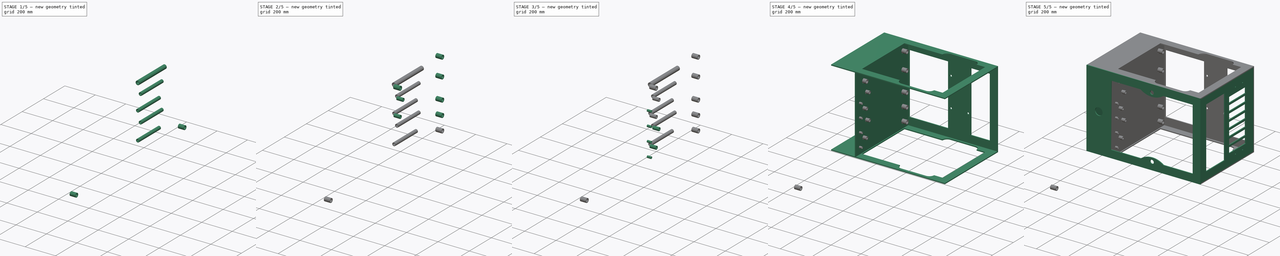
[diagram: build sequence overview — one tinted view per stage of 5, left to right]
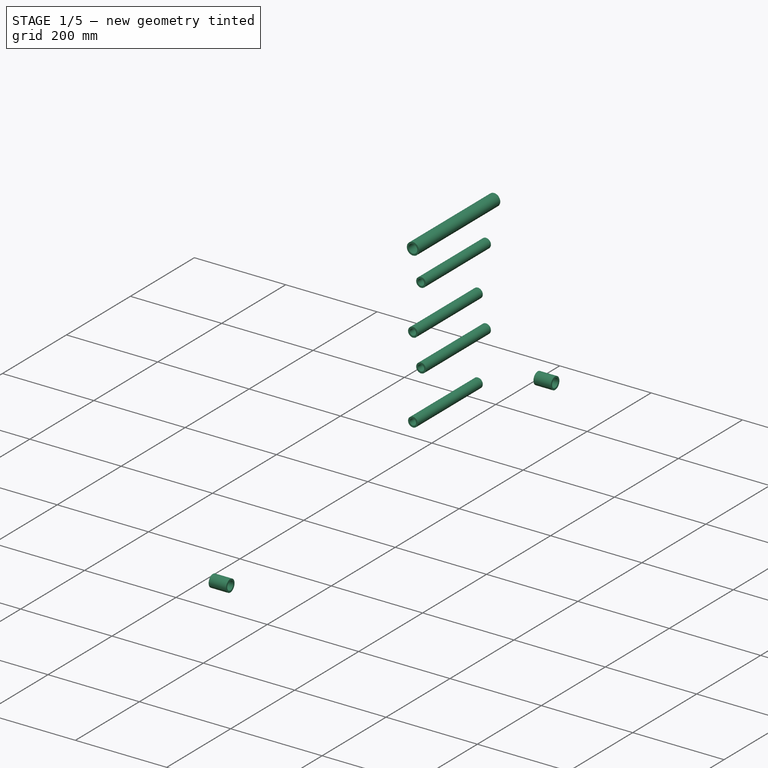
[diagram: stage 1 of 5 — iso view after this stage's code; geometry added in this stage tinted green]
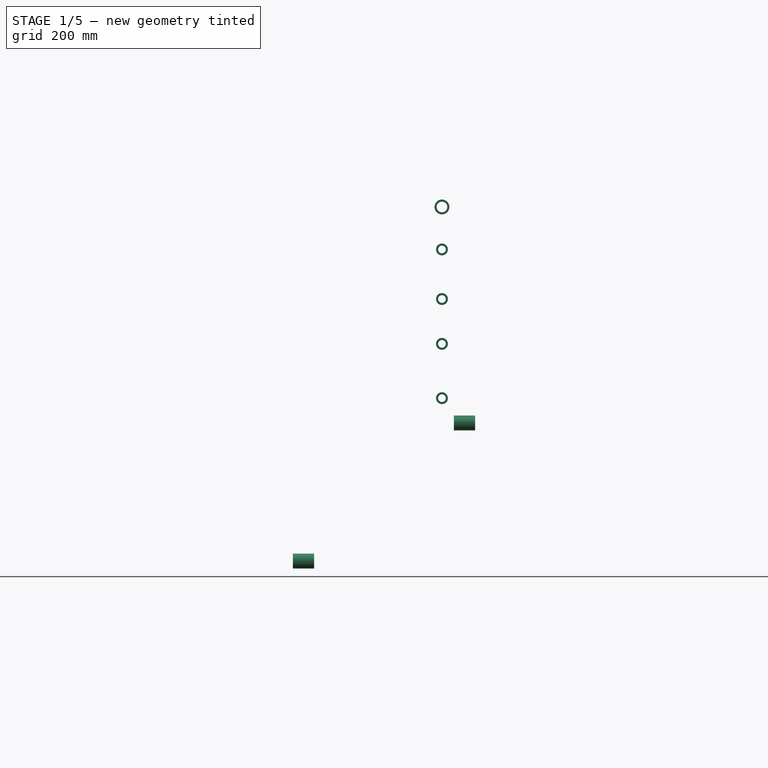
[diagram: stage 1 of 5 — front view after this stage's code; geometry added in this stage tinted green]
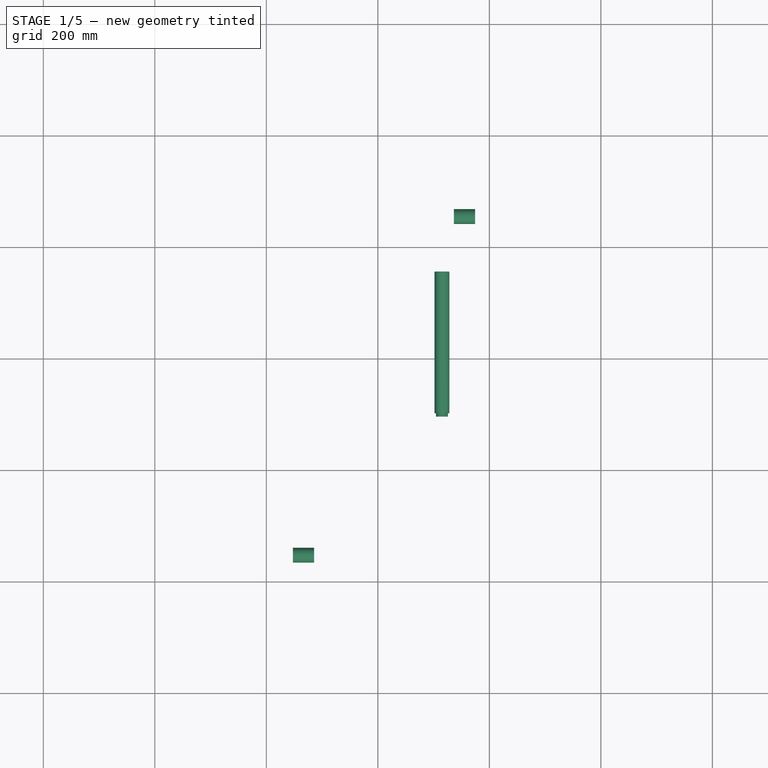
[diagram: stage 1 of 5 — top view after this stage's code; geometry added in this stage tinted green]
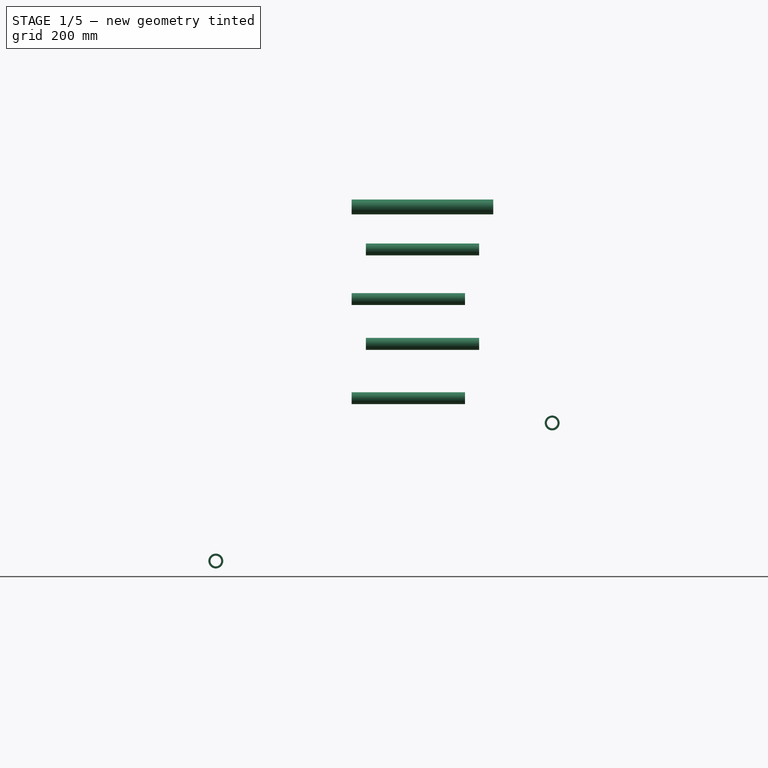
[diagram: stage 1 of 5 — right view after this stage's code; geometry added in this stage tinted green]
FCSTD DOCUMENT  (FreeCAD 0.16R6712 (Git))
Label: PC v17.11 Frame
License: All rights reserved
LicenseURL: http://en.wikipedia.org/wiki/All_rights_reserved
objects: App::FeaturePython×61, Part::FeaturePython×32, Part::Feature×8, Sketcher::SketchObject×6, PartDesign::Pad×5, PartDesign::Pocket×1, PartDesign::LinearPattern×1, App::DocumentObjectGroup×1
note: 59 computed .brp shape members not serialized (recipe doc carries the construction recipe); baked Part::Feature solids carry a one-line shape summary decoded from their .brp

FEATURE [Part::FeaturePython] Clone093  label="Clone of 0.75 NPT x 1.5in pipe section005"  # Draft clone (typed FeaturePython)
  Objects = -> [Cut001]
  Placement = pos=(136.36,450.85,44.45) rot=(0,1,0;1.5708rad)
  Scale = (1,1,1)
FEATURE [Part::FeaturePython] Clone094  label="Clone of 0.75 NPT x 1.5in pipe section006"  # Draft clone (typed FeaturePython)
  Objects = -> [Cut001]
  Placement = pos=(-152.4,-152.4,-203.2) rot=(0,1,0;1.5708rad)
  Scale = (1,1,1)
FEATURE [App::FeaturePython] circularEdgeConstraint07  label="circularEdgeConstraint07 1/4 return"  # a2plus constraint (typed FeaturePython)
  Object1 = Clone080
  Object2 = Clone072
  SubElement1 = Edge2
  SubElement2 = Edge54
  Type = circularEdge
  directionConstraint = 0
  lockRotation = false
  offset = -8.89
FEATURE [App::FeaturePython] circularEdgeConstraint08  # a2plus constraint (typed FeaturePython)
  Object1 = Clone081
  Object2 = Clone072
  SubElement1 = Edge2
  SubElement2 = Edge51
  Type = circularEdge
  directionConstraint = 0
  lockRotation = false
  offset = -8.89
FEATURE [App::FeaturePython] circularEdgeConstraint09  # a2plus constraint (typed FeaturePython)
  Object1 = Clone082
  Object2 = Clone072
  SubElement1 = Edge2
  SubElement2 = Edge48
  Type = circularEdge
  directionConstraint = 0
  lockRotation = false
  offset = -8.89
FEATURE [App::FeaturePython] circularEdgeConstraint10  # a2plus constraint (typed FeaturePython)
  Object1 = Clone083
  Object2 = Clone072
  SubElement1 = Edge2
  SubElement2 = Edge45
  Type = circularEdge
  directionConstraint = 0
  lockRotation = false
  offset = -8.89
FEATURE [App::FeaturePython] circularEdgeConstraint11  label="circularEdgeConstraint11 1/2 return"  # a2plus constraint (typed FeaturePython)
  Object1 = Clone084
  Object2 = Clone072
  SubElement1 = Edge2
  SubElement2 = Edge39
  Type = circularEdge
  directionConstraint = 0
  lockRotation = false
  offset = -15.24
FEATURE [App::FeaturePython] circularEdgeConstraint12  # a2plus constraint (typed FeaturePython)
  Object1 = Clone085
  Object2 = Clone072
  SubElement1 = Edge2
  SubElement2 = Edge36
  Type = circularEdge
  directionConstraint = 0
  lockRotation = false
  offset = -15.24
FEATURE [App::FeaturePython] circularEdgeConstraint13  # a2plus constraint (typed FeaturePython)
  Object1 = Clone086
  Object2 = Clone072
  SubElement1 = Edge2
  SubElement2 = Edge42
  Type = circularEdge
  directionConstraint = 0
  lockRotation = false
  offset = -15.24
FEATURE [App::FeaturePython] circularEdgeConstraint14  # a2plus constraint (typed FeaturePython)
  Object1 = Clone087
  Object2 = Clone072
  SubElement1 = Edge2
  SubElement2 = Edge33
  Type = circularEdge
  directionConstraint = 0
  lockRotation = false
  offset = -15.24
FEATURE [App::FeaturePython] circularEdgeConstraint15  label="circularEdgeConstraint15 3/4 return"  # a2plus constraint (typed FeaturePython)
  Object1 = Clone088
  Object2 = Clone072
  SubElement1 = Edge3
  SubElement2 = Edge15
  Type = circularEdge
  directionConstraint = 0
  lockRotation = false
  offset = -15.24
FEATURE [App::FeaturePython] circularEdgeConstraint16  label="circularEdgeConstraint16 3/4 suction"  # a2plus constraint (typed FeaturePython)
  Object1 = Clone089
  Object2 = Clone072
  SubElement1 = Edge3
  SubElement2 = Edge27
  Type = circularEdge
  directionConstraint = 0
  lockRotation = false
  offset = -8.89
FEATURE [App::FeaturePython] circularEdgeConstraint17  # a2plus constraint (typed FeaturePython)
  Object1 = Clone090
  Object2 = Clone072
  SubElement1 = Edge3
  SubElement2 = Edge24
  Type = circularEdge
  directionConstraint = 0
  lockRotation = false
  offset = -8.89
FEATURE [App::FeaturePython] circularEdgeConstraint18  # a2plus constraint (typed FeaturePython)
  Object1 = Clone091
  Object2 = Clone072
  SubElement1 = Edge3
  SubElement2 = Edge18
  Type = circularEdge
  directionConstraint = 0
  lockRotation = false
  offset = -8.89
FEATURE [App::FeaturePython] circularEdgeConstraint19  # a2plus constraint (typed FeaturePython)
  Object1 = Clone092
  Object2 = Clone072
  SubElement1 = Edge3
  SubElement2 = Edge21
  Type = circularEdge
  directionConstraint = 0
  lockRotation = false
  offset = -8.89
FEATURE [App::FeaturePython] circularEdgeConstraint20  label="circularEdgeConstraint20 3/4 suction"  # a2plus constraint (typed FeaturePython)
  Object1 = Clone093
  Object2 = Clone072
  SubElement1 = Edge3
  SubElement2 = Edge30
  Type = circularEdge
  directionConstraint = 0
  lockRotation = false
  offset = -8.89
FEATURE [Part::Feature] Cut002  label="0.5x8in NPT Pipe"
  Placement = pos=(76.2,-76.2,152.4) rot=(1,0,0;1.5708rad)
  shape: bbox 21.34 x 203.2 x 21.34 mm, 4 faces (baked)
FEATURE [Part::FeaturePython] Clone095  label="Clone of 0.5x8in NPT Pipe"  # Draft clone (typed FeaturePython)
  Objects = -> [Cut002]
  Placement = pos=(114.976,294.434,88.9) rot=(1,0,0;1.5708rad)
  Scale = (1,1,1)
FEATURE [Part::FeaturePython] Clone096  label="Clone of 0.5x8in NPT Pipe001"  # Draft clone (typed FeaturePython)
  Objects = -> [Cut002]
  Placement = pos=(114.976,319.834,186.267) rot=(1,0,0;1.5708rad)
  Scale = (1,1,1)
FEATURE [Part::FeaturePython] Clone097  label="Clone of 0.5x8in NPT Pipe002"  # Draft clone (typed FeaturePython)
  Objects = -> [Cut002]
  Placement = pos=(114.976,294.434,266.7) rot=(1,0,0;1.5708rad)
  Scale = (1,1,1)
FEATURE [Part::FeaturePython] Clone098  label="Clone of 0.5x8in NPT Pipe003"  # Draft clone (typed FeaturePython)
  Objects = -> [Cut002]
  Placement = pos=(114.976,319.834,355.6) rot=(1,0,0;1.5708rad)
  Scale = (1,1,1)
FEATURE [App::FeaturePython] circularEdgeConstraint21  # a2plus constraint (typed FeaturePython)
  Object1 = Clone095
  Object2 = Clone075
  SubElement1 = Edge1
  SubElement2 = Edge14
  Type = circularEdge
  directionConstraint = 0
  lockRotation = false
  offset = 8.89
FEATURE [App::FeaturePython] circularEdgeConstraint22  # a2plus constraint (typed FeaturePython)
  Object1 = Clone096
  Object2 = Clone076
  SubElement1 = Edge1
  SubElement2 = Edge9
  Type = circularEdge
  directionConstraint = 1
  lockRotation = false
  offset = 8.89
FEATURE [App::FeaturePython] circularEdgeConstraint23  # a2plus constraint (typed FeaturePython)
  Object1 = Clone097
  Object2 = Clone077
  SubElement1 = Edge1
  SubElement2 = Edge9
  Type = circularEdge
  directionConstraint = 1
  lockRotation = false
  offset = 8.89
FEATURE [App::FeaturePython] circularEdgeConstraint24  label="circularEdgeConstraint24 1/2 no air return"  # a2plus constraint (typed FeaturePython)
  Object1 = Clone098
  Object2 = Clone078
  SubElement1 = Edge1
  SubElement2 = Edge9
  Type = circularEdge
  directionConstraint = 1
  lockRotation = false
  offset = 8.89
FEATURE [Part::Feature] Cut003  label="0.75in x10in NPT pipe"
  Placement = pos=(50.8,-50.8,584.2) rot=(1,0,0;1.5708rad)
  shape: bbox 26.67 x 254 x 26.67 mm, 4 faces (baked)
FEATURE [Part::FeaturePython] Clone099  label="Clone of 0.75in x10in NPT pipe"  # Draft clone (typed FeaturePython)
  Objects = -> [Cut003]
  Placement = pos=(114.976,345.234,431.8) rot=(1,0,0;1.5708rad)
  Scale = (1,1,1)
FEATURE [App::FeaturePython] circularEdgeConstraint25  # a2plus constraint (typed FeaturePython)
  Object1 = Clone099
  Object2 = Clone079
  SubElement1 = Edge1
  SubElement2 = Edge18
  Type = circularEdge
  directionConstraint = 1
  lockRotation = false
  offset = 8.89
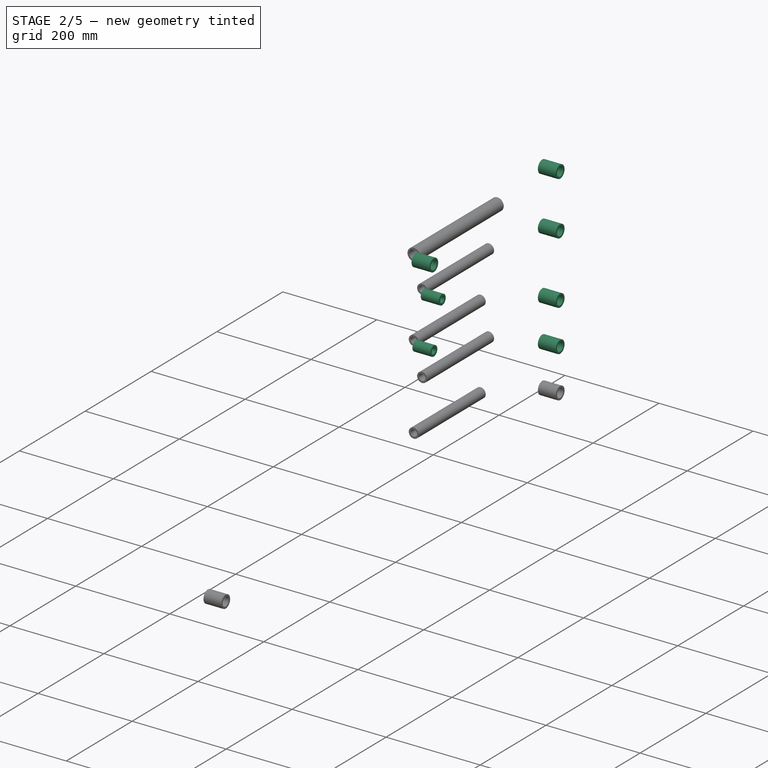
[diagram: stage 2 of 5 — iso view after this stage's code; geometry added in this stage tinted green]
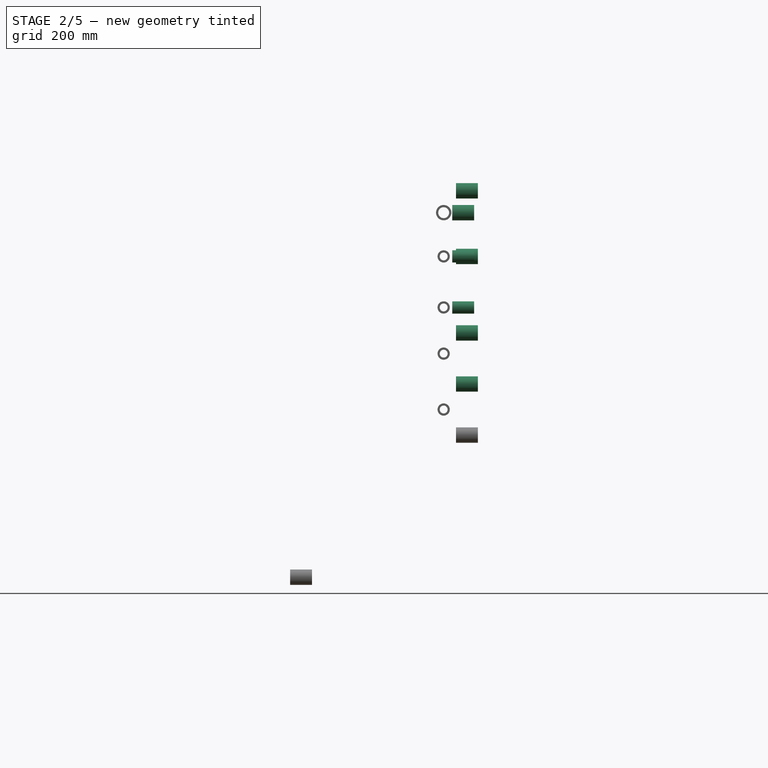
[diagram: stage 2 of 5 — front view after this stage's code; geometry added in this stage tinted green]
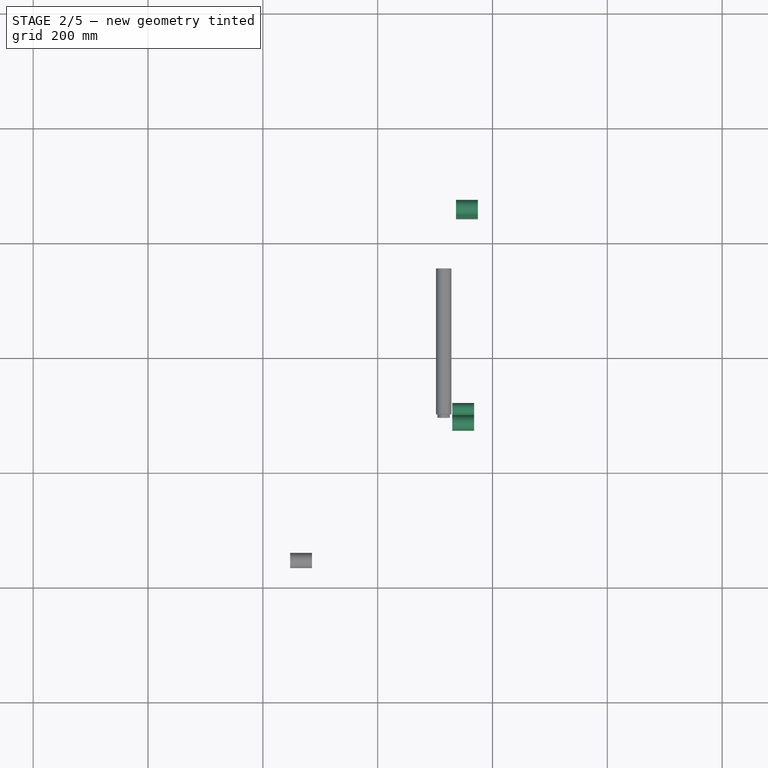
[diagram: stage 2 of 5 — top view after this stage's code; geometry added in this stage tinted green]
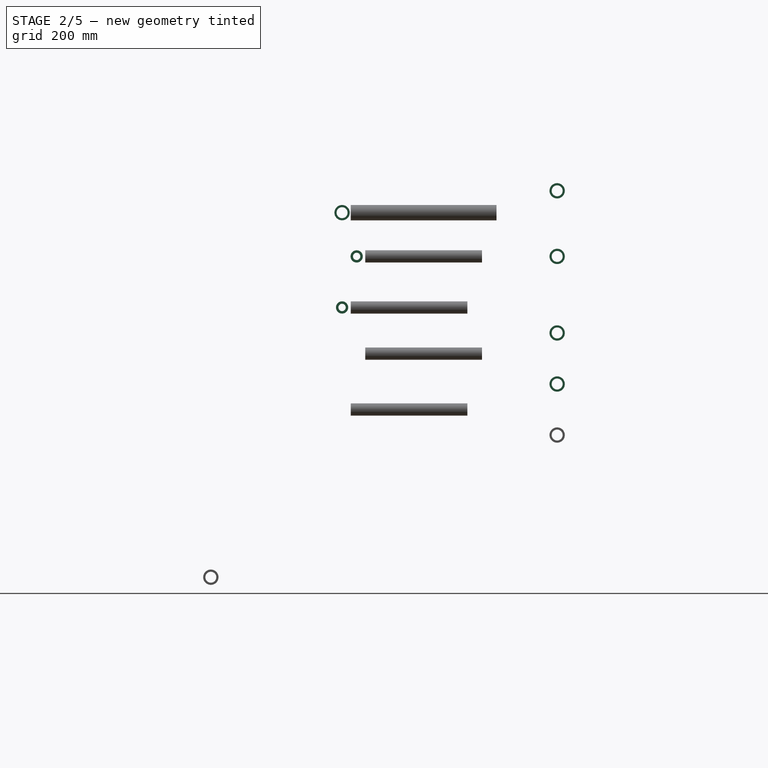
[diagram: stage 2 of 5 — right view after this stage's code; geometry added in this stage tinted green]
FEATURE [Part::FeaturePython] Clone086  label="Clone of 0.5in x 1.5in NPT002"  # Draft clone (typed FeaturePython)
  Objects = -> [Pad001]
  Placement = pos=(130.01,76.2,266.7) rot=(0.57735,0.57735,0.57735;2.0944rad)
  Scale = (1,1,1)
FEATURE [Part::FeaturePython] Clone087  label="Clone of 0.5in x 1.5in NPT003"  # Draft clone (typed FeaturePython)
  Objects = -> [Pad001]
  Placement = pos=(130.01,101.6,355.6) rot=(0.57735,0.57735,0.57735;2.0944rad)
  Scale = (1,1,1)
FEATURE [Part::FeaturePython] Clone088  label="Clone of 0.75 NPT x 1.5in pipe section"  # Draft clone (typed FeaturePython)
  Objects = -> [Cut001]
  Placement = pos=(130.01,76.2,431.8) rot=(0,1,0;1.5708rad)
  Scale = (1,1,1)
FEATURE [Part::FeaturePython] Clone089  label="Clone of 0.75 NPT x 1.5in pipe section001"  # Draft clone (typed FeaturePython)
  Objects = -> [Cut001]
  Placement = pos=(136.36,450.85,133.35) rot=(0,1,0;1.5708rad)
  Scale = (1,1,1)
FEATURE [Part::FeaturePython] Clone090  label="Clone of 0.75 NPT x 1.5in pipe section002"  # Draft clone (typed FeaturePython)
  Objects = -> [Cut001]
  Placement = pos=(136.36,450.85,222.25) rot=(0,1,0;1.5708rad)
  Scale = (1,1,1)
FEATURE [Part::FeaturePython] Clone091  label="Clone of 0.75 NPT x 1.5in pipe section003"  # Draft clone (typed FeaturePython)
  Objects = -> [Cut001]
  Placement = pos=(136.36,450.85,355.6) rot=(0,1,0;1.5708rad)
  Scale = (1,1,1)
FEATURE [Part::FeaturePython] Clone092  label="Clone of 0.75 NPT x 1.5in pipe section004"  # Draft clone (typed FeaturePython)
  Objects = -> [Cut001]
  Placement = pos=(136.36,450.85,469.9) rot=(0,1,0;1.5708rad)
  Scale = (1,1,1)
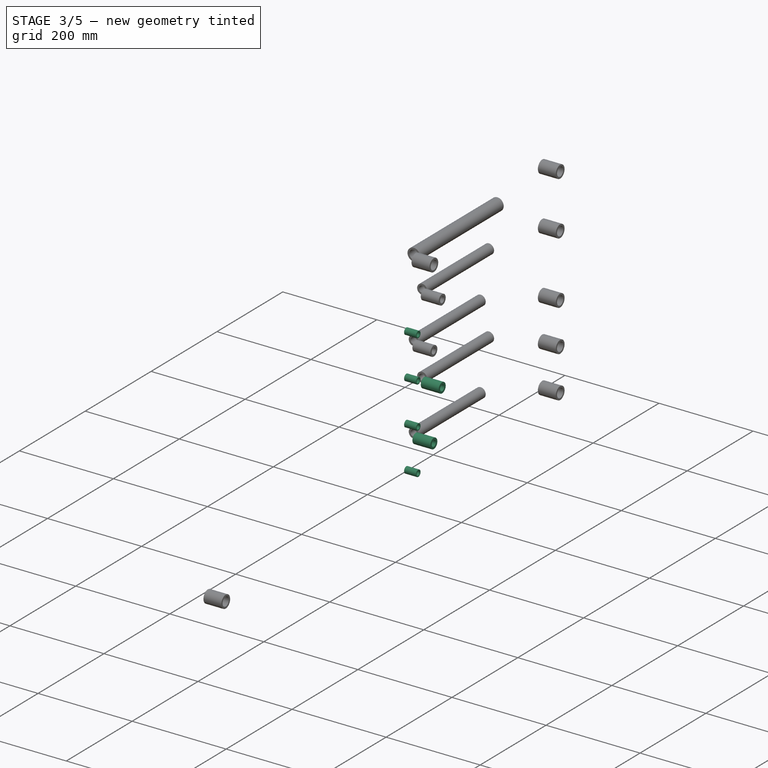
[diagram: stage 3 of 5 — iso view after this stage's code; geometry added in this stage tinted green]
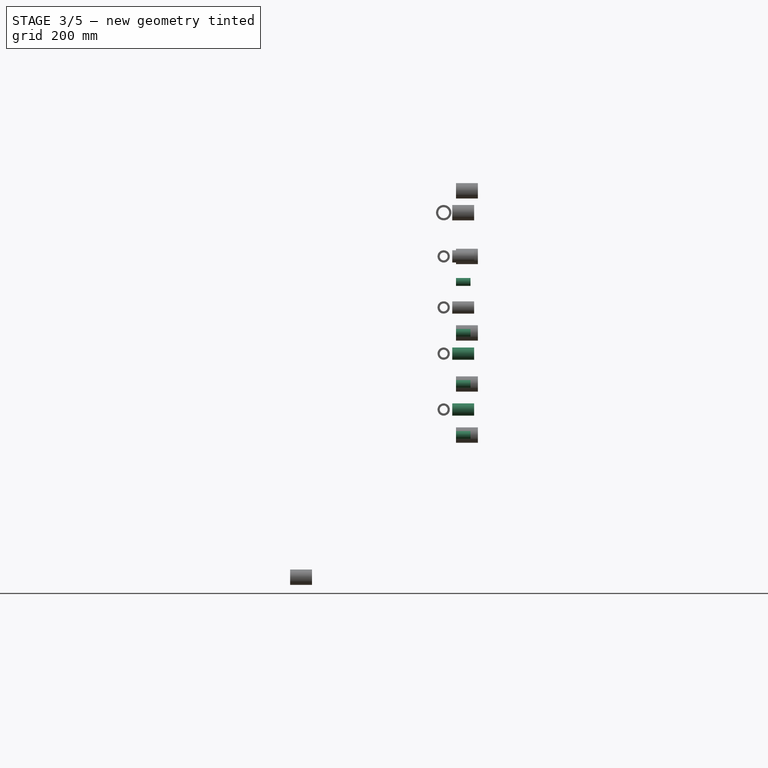
[diagram: stage 3 of 5 — front view after this stage's code; geometry added in this stage tinted green]
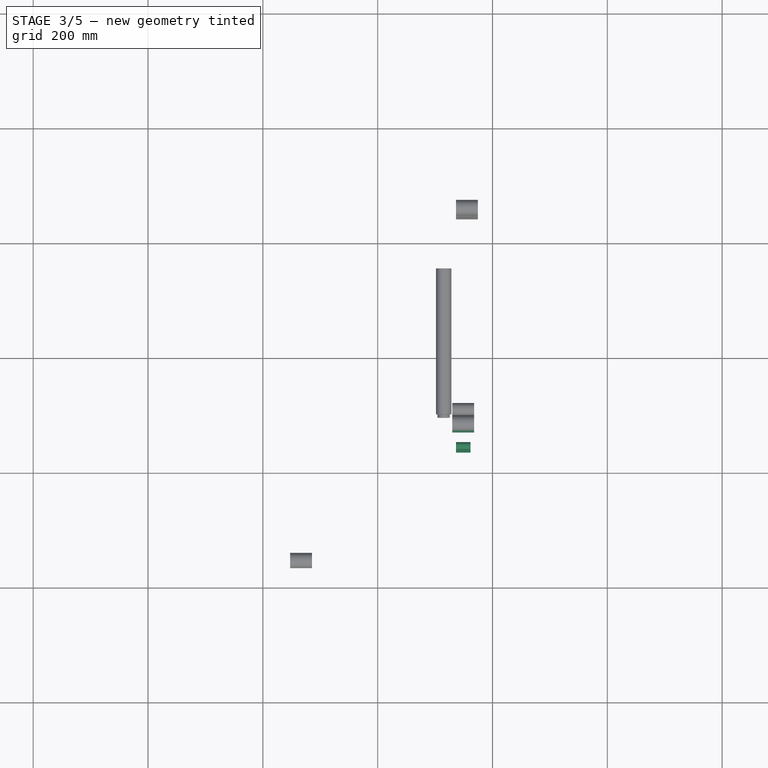
[diagram: stage 3 of 5 — top view after this stage's code; geometry added in this stage tinted green]
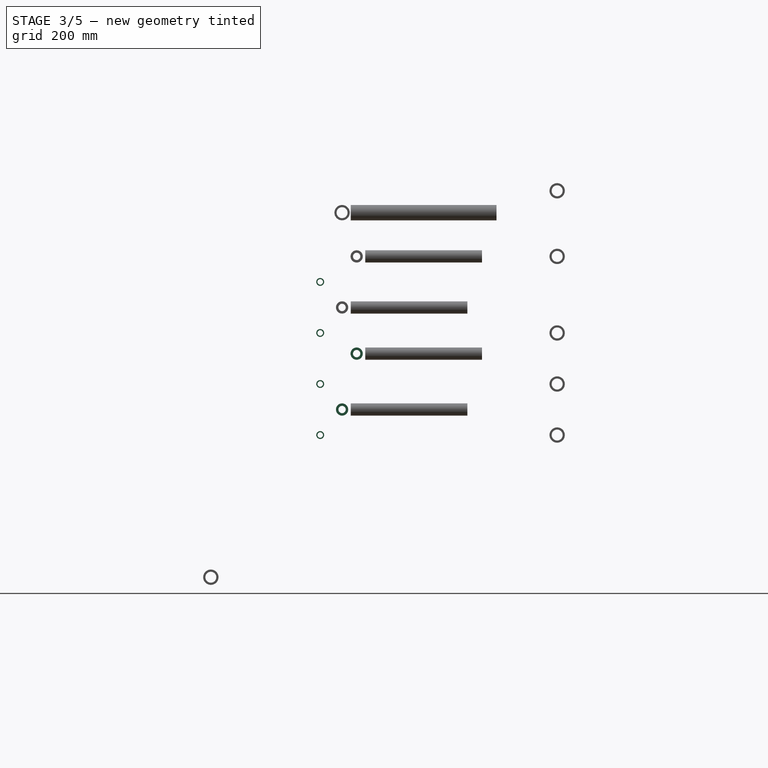
[diagram: stage 3 of 5 — right view after this stage's code; geometry added in this stage tinted green]
FEATURE [App::DocumentObjectGroup] Group  label="Frame"
  Group = -> [powercubeframeside01_01,Compound002002,Clone070,LinearPattern,Pocket,Pad007,Pad008,Clone071,Pad009,Clone072,circularEdgeConstraint01,Pad,Pad010,Clone,Clone073,Clone074]
FEATURE [App::FeaturePython] planeConstraint01  label="back of tank end 20x20_to back edge of top"  # a2plus constraint (typed FeaturePython)
  Object1 = Clone071
  Object2 = powercubeframeside01_01
  SubElement1 = Face1
  SubElement2 = Face1
  Type = plane
  directionConstraint = 1
  offset = 0
FEATURE [App::FeaturePython] planeConstraint01_mirror  label="Clone of tank top to back of tank"  # a2plus constraint (typed FeaturePython)
  Object1 = Clone071
  Object2 = powercubeframeside01_01
  SubElement1 = Face1
  SubElement2 = Face1
  Type = plane
  directionConstraint = 1
  offset = 0
FEATURE [App::FeaturePython] planeConstraint02  label="tank top vert__tank end 20x20"  # a2plus constraint (typed FeaturePython)
  Object1 = Clone071
  Object2 = powercubeframeside01_01
  SubElement1 = Face16
  SubElement2 = Face4
  Type = plane
  directionConstraint = 1
  offset = 501.65
FEATURE [App::FeaturePython] planeConstraint02_mirror  label="_Clone of tank top_bottom to tand end bottom edge vert"  # a2plus constraint (typed FeaturePython)
  Object1 = Clone071
  Object2 = powercubeframeside01_01
  SubElement1 = Face16
  SubElement2 = Face4
  Type = plane
  directionConstraint = 1
  offset = 501.65
FEATURE [App::FeaturePython] planeConstraint03  label="top side RT_tank end 20x20_side_RT"  # a2plus constraint (typed FeaturePython)
  Object1 = Clone071
  Object2 = powercubeframeside01_01
  SubElement1 = Face4
  SubElement2 = Face6
  Type = plane
  directionConstraint = 0
  offset = 6.35
FEATURE [App::FeaturePython] planeConstraint03_mirror  label="tank back end_RT edge_Clone of tank top_side RT"  # a2plus constraint (typed FeaturePython)
  Object1 = Clone071
  Object2 = powercubeframeside01_01
  SubElement1 = Face4
  SubElement2 = Face6
  Type = plane
  directionConstraint = 0
  offset = 6.35
FEATURE [App::FeaturePython] planeConstraint04  label="planeConstraint04__tank end 20x20"  # a2plus constraint (typed FeaturePython)
  Object1 = Clone072
  Object2 = powercubeframeside01_01
  SubElement1 = Face19
  SubElement2 = Face1
  Type = plane
  directionConstraint = 0
  offset = 158.75
FEATURE [App::FeaturePython] planeConstraint04_mirror  label="planeConstraint04__Clone of inner_tank wall"  # a2plus constraint (typed FeaturePython)
  Object1 = Clone072
  Object2 = powercubeframeside01_01
  SubElement1 = Face19
  SubElement2 = Face1
  Type = plane
  directionConstraint = 0
  offset = 158.75
FEATURE [App::FeaturePython] planeConstraint05  label="planeConstraint05__tank end 20x20"  # a2plus constraint (typed FeaturePython)
  Object1 = Clone072
  Object2 = powercubeframeside01_01
  SubElement1 = Face1
  SubElement2 = Face6
  Type = plane
  directionConstraint = 0
  offset = 0
FEATURE [App::FeaturePython] planeConstraint05_mirror  label="planeConstraint05__Clone of inner_tank wall"  # a2plus constraint (typed FeaturePython)
  Object1 = Clone072
  Object2 = powercubeframeside01_01
  SubElement1 = Face1
  SubElement2 = Face6
  Type = plane
  directionConstraint = 0
  offset = 0
FEATURE [App::FeaturePython] planeConstraint06  label="planeConstraint06__Clone of inner_tank wall"  # a2plus constraint (typed FeaturePython)
  Object1 = powercubeframeside01_01
  Object2 = Clone072
  SubElement1 = Face4
  SubElement2 = Face2
  Type = plane
  directionConstraint = 0
  offset = 0
FEATURE [App::FeaturePython] planeConstraint06_mirror  label="planeConstraint06__tank end 20x20"  # a2plus constraint (typed FeaturePython)
  Object1 = powercubeframeside01_01
  Object2 = Clone072
  SubElement1 = Face4
  SubElement2 = Face2
  Type = plane
  directionConstraint = 0
  offset = 0
FEATURE [App::FeaturePython] planeConstraint07  label="planeConstraint07__tank end 20x20"  # a2plus constraint (typed FeaturePython)
  Object1 = Clone070
  Object2 = powercubeframeside01_01
  SubElement1 = Face4
  SubElement2 = Face1
  Type = plane
  directionConstraint = 0
  offset = 755.65
FEATURE [App::FeaturePython] planeConstraint07_mirror  label="planeConstraint07__Clone of LinearPattern"  # a2plus constraint (typed FeaturePython)
  Object1 = Clone070
  Object2 = powercubeframeside01_01
  SubElement1 = Face4
  SubElement2 = Face1
  Type = plane
  directionConstraint = 0
  offset = 755.65
FEATURE [App::FeaturePython] planeConstraint08  label="planeConstraint08__tank end 20x20"  # a2plus constraint (typed FeaturePython)
  Object1 = Clone070
  Object2 = powercubeframeside01_01
  SubElement1 = Face3
  SubElement2 = Face4
  Type = plane
  directionConstraint = 0
  offset = 0
FEATURE [App::FeaturePython] planeConstraint08_mirror  label="planeConstraint08__Clone of LinearPattern"  # a2plus constraint (typed FeaturePython)
  Object1 = Clone070
  Object2 = powercubeframeside01_01
  SubElement1 = Face3
  SubElement2 = Face4
  Type = plane
  directionConstraint = 0
  offset = 0
FEATURE [App::FeaturePython] planeConstraint09  label="planeConstraint09__tank end 20x20"  # a2plus constraint (typed FeaturePython)
  Object1 = Clone070
  Object2 = powercubeframeside01_01
  SubElement1 = Face1
  SubElement2 = Face6
  Type = plane
  directionConstraint = 0
  offset = 0
FEATURE [App::FeaturePython] planeConstraint09_mirror  label="planeConstraint09__Clone of LinearPattern"  # a2plus constraint (typed FeaturePython)
  Object1 = Clone070
  Object2 = powercubeframeside01_01
  SubElement1 = Face1
  SubElement2 = Face6
  Type = plane
  directionConstraint = 0
  offset = 0
FEATURE [App::FeaturePython] planeConstraint10  label="planeConstraint10__tank end 20x20"  # a2plus constraint (typed FeaturePython)
  Object1 = Clone074
  Object2 = powercubeframeside01_01
  SubElement1 = Face18
  SubElement2 = Face4
  Type = plane
  directionConstraint = 1
  offset = 0
FEATURE [App::FeaturePython] planeConstraint10_mirror  label="planeConstraint10__Clone of Bottom"  # a2plus constraint (typed FeaturePython)
  Object1 = Clone074
  Object2 = powercubeframeside01_01
  SubElement1 = Face18
  SubElement2 = Face4
  Type = plane
  directionConstraint = 1
  offset = 0
FEATURE [App::FeaturePython] planeConstraint11  label="planeConstraint11__tank end 20x20"  # a2plus constraint (typed FeaturePython)
  Object1 = Clone074
  Object2 = powercubeframeside01_01
  SubElement1 = Face1
  SubElement2 = Face6
  Type = plane
  directionConstraint = 0
  offset = 0
FEATURE [App::FeaturePython] planeConstraint11_mirror  label="planeConstraint11__Clone of Bottom"  # a2plus constraint (typed FeaturePython)
  Object1 = Clone074
  Object2 = powercubeframeside01_01
  SubElement1 = Face1
  SubElement2 = Face6
  Type = plane
  directionConstraint = 0
  offset = 0
FEATURE [App::FeaturePython] planeConstraint12  label="planeConstraint12__tank end 20x20"  # a2plus constraint (typed FeaturePython)
  Object1 = Clone074
  Object2 = powercubeframeside01_01
  SubElement1 = Face4
  SubElement2 = Face1
  Type = plane
  directionConstraint = 0
  offset = 0
FEATURE [App::FeaturePython] planeConstraint12_mirror  label="planeConstraint12__Clone of Bottom"  # a2plus constraint (typed FeaturePython)
  Object1 = Clone074
  Object2 = powercubeframeside01_01
  SubElement1 = Face4
  SubElement2 = Face1
  Type = plane
  directionConstraint = 0
  offset = 0
FEATURE [App::FeaturePython] planeConstraint13  label="planeConstraint13__tank end 20x20"  # a2plus constraint (typed FeaturePython)
  Object1 = Clone073
  Object2 = powercubeframeside01_01
  SubElement1 = Face4
  SubElement2 = Face1
  Type = plane
  directionConstraint = 1
  offset = 0
FEATURE [App::FeaturePython] planeConstraint13_mirror  label="planeConstraint13__Clone of sides001"  # a2plus constraint (typed FeaturePython)
  Object1 = Clone073
  Object2 = powercubeframeside01_01
  SubElement1 = Face4
  SubElement2 = Face1
  Type = plane
  directionConstraint = 1
  offset = 0
FEATURE [App::FeaturePython] planeConstraint14  label="LT side vert PC14__tank end 20x20 bottom edge"  # a2plus constraint (typed FeaturePython)
  Object1 = Clone073
  Object2 = powercubeframeside01_01
  SubElement1 = Face1
  SubElement2 = Face4
  Type = plane
  directionConstraint = 0
  offset = 6.35
FEATURE [App::FeaturePython] planeConstraint14_mirror  label="PC14_Clone of LT_sides001 to tank end bottom edge"  # a2plus constraint (typed FeaturePython)
  Object1 = Clone073
  Object2 = powercubeframeside01_01
  SubElement1 = Face1
  SubElement2 = Face4
  Type = plane
  directionConstraint = 0
  offset = 6.35
FEATURE [App::FeaturePython] planeConstraint15  label="planeConstraint15__tank end 20x20"  # a2plus constraint (typed FeaturePython)
  Object1 = Clone073
  Object2 = powercubeframeside01_01
  SubElement1 = Face18
  SubElement2 = Face5
  Type = plane
  directionConstraint = 0
  offset = 0
FEATURE [App::FeaturePython] planeConstraint15_mirror  label="planeConstraint15__Clone of sides001"  # a2plus constraint (typed FeaturePython)
  Object1 = Clone073
  Object2 = powercubeframeside01_01
  SubElement1 = Face18
  SubElement2 = Face5
  Type = plane
  directionConstraint = 0
  offset = 0
FEATURE [App::FeaturePython] planeConstraint16  label="planeConstraint16__tank end 20x20"  # a2plus constraint (typed FeaturePython)
  Object1 = Clone
  Object2 = powercubeframeside01_01
  SubElement1 = Face4
  SubElement2 = Face1
  Type = plane
  directionConstraint = 1
  offset = 0
FEATURE [App::FeaturePython] planeConstraint16_mirror  label="planeConstraint16__Clone of sides Right"  # a2plus constraint (typed FeaturePython)
  Object1 = Clone
  Object2 = powercubeframeside01_01
  SubElement1 = Face4
  SubElement2 = Face1
  Type = plane
  directionConstraint = 1
  offset = 0
FEATURE [App::FeaturePython] planeConstraint17  label="planeConstraint17__tank end 20x20"  # a2plus constraint (typed FeaturePython)
  Object1 = Clone
  Object2 = powercubeframeside01_01
  SubElement1 = Face17
  SubElement2 = Face6
  Type = plane
  directionConstraint = 0
  offset = 0
FEATURE [App::FeaturePython] planeConstraint17_mirror  label="planeConstraint17__Clone of sides Right"  # a2plus constraint (typed FeaturePython)
  Object1 = Clone
  Object2 = powercubeframeside01_01
  SubElement1 = Face17
  SubElement2 = Face6
  Type = plane
  directionConstraint = 0
  offset = 0
FEATURE [App::FeaturePython] planeConstraint18  label="planeConstraint18__tank end 20x20"  # a2plus constraint (typed FeaturePython)
  Object1 = Clone
  Object2 = powercubeframeside01_01
  SubElement1 = Face1
  SubElement2 = Face4
  Type = plane
  directionConstraint = 0
  offset = 6.35
FEATURE [App::FeaturePython] planeConstraint18_mirror  label="planeConstraint18__Clone of sides Right"  # a2plus constraint (typed FeaturePython)
  Object1 = Clone
  Object2 = powercubeframeside01_01
  SubElement1 = Face1
  SubElement2 = Face4
  Type = plane
  directionConstraint = 0
  offset = 6.35
FEATURE [Part::Feature] Compound001  label="0.5in NPT 90 elbow"
  Placement = pos=(-152.4,-355.6,0) rot=(-0.707107,0,0.707107;3.14159rad)
  shape: bbox 41.83 x 41.83 x 33.02 mm, 10 faces, 2 solids (baked)
FEATURE [Part::FeaturePython] Clone075  label="Clone of 0.5in NPT 90 elbow"  # Draft clone (typed FeaturePython)
  Objects = -> [Compound001]
  Placement = pos=(-121.958,76.2,88.9) rot=(0.57735,-0.57735,0.57735;2.0944rad)
  Scale = (1,1,1)
FEATURE [Part::FeaturePython] Clone076  label="Clone of 0.5in NPT 90 elbow001"  # Draft clone (typed FeaturePython)
  Objects = -> [Compound001]
  Placement = pos=(114.976,-135.334,186.267) rot=(-0.707107,0,0.707107;3.14159rad)
  Scale = (1,1,1)
FEATURE [Part::FeaturePython] Clone077  label="Clone of 0.5in NPT 90 elbow002"  # Draft clone (typed FeaturePython)
  Objects = -> [Compound001]
  Placement = pos=(114.976,-160.734,266.7) rot=(-0.707107,0,0.707107;3.14159rad)
  Scale = (1,1,1)
FEATURE [Part::FeaturePython] Clone078  label="Clone of 0.5in NPT 90 elbow003"  # Draft clone (typed FeaturePython)
  Objects = -> [Compound001]
  Placement = pos=(114.976,-135.334,355.6) rot=(-0.707107,0,0.707107;3.14159rad)
  Scale = (1,1,1)
FEATURE [App::FeaturePython] circularEdgeConstraint02  # a2plus constraint (typed FeaturePython)
  Object1 = Clone075
  Object2 = Clone072
  SubElement1 = Edge9
  SubElement2 = Edge38
  Type = circularEdge
  directionConstraint = 0
  lockRotation = false
  offset = 0
FEATURE [App::FeaturePython] circularEdgeConstraint03  # a2plus constraint (typed FeaturePython)
  Object1 = Clone076
  Object2 = Clone072
  SubElement1 = Edge14
  SubElement2 = Edge35
  Type = circularEdge
  directionConstraint = 1
  lockRotation = false
  offset = 0
FEATURE [App::FeaturePython] circularEdgeConstraint04  # a2plus constraint (typed FeaturePython)
  Object1 = Clone077
  Object2 = Clone072
  SubElement1 = Edge14
  SubElement2 = Edge41
  Type = circularEdge
  directionConstraint = 1
  lockRotation = false
  offset = 0
FEATURE [App::FeaturePython] circularEdgeConstraint05  # a2plus constraint (typed FeaturePython)
  Object1 = Clone078
  Object2 = Clone072
  SubElement1 = Edge14
  SubElement2 = Edge32
  Type = circularEdge
  directionConstraint = 1
  lockRotation = false
  offset = 0
FEATURE [Part::Feature] Compound002003  label="0.75in NPT 90 elbow"
  Placement = pos=(-101.6,-355.6,-76.2) rot=(-0.707107,0,0.707107;3.14159rad)
  shape: bbox 43.5 x 43.5 x 37.39 mm, 10 faces, 2 solids (baked)
FEATURE [Part::FeaturePython] Clone079  label="Clone of 0.75in NPT 90 elbow"  # Draft clone (typed FeaturePython)
  Objects = -> [Compound002003]
  Placement = pos=(114.976,-160.734,431.8) rot=(-0.707107,0,0.707107;3.14159rad)
  Scale = (1,1,1)
FEATURE [App::FeaturePython] circularEdgeConstraint06  # a2plus constraint (typed FeaturePython)
  Object1 = Clone079
  Object2 = Clone072
  SubElement1 = Edge8
  SubElement2 = Edge14
  Type = circularEdge
  directionConstraint = 1
  lockRotation = false
  offset = 0
FEATURE [Part::Feature] Pad001  label="0.5in x 1.5in NPT"
  Placement = pos=(-304.8,-76.2,0) rot=(0.57735,0.57735,0.57735;2.0944rad)
  shape: bbox 38.1 x 21.34 x 21.34 mm, 4 faces (baked)
FEATURE [Part::Feature] Cut001  label="0.75 NPT x 1.5in pipe section"
  Placement = pos=(-152.4,-152.4,-203.2) rot=(0,1,0;1.5708rad)
  shape: bbox 38.1 x 26.67 x 26.67 mm, 4 faces (baked)
FEATURE [Part::Feature] Pad011  label="1/4" NPT pipe"
  Placement = pos=(-152.4,-203.2,-25.4) rot=(0.57735,0.57735,0.57735;2.0944rad)
  shape: bbox 25.4 x 13.72 x 13.72 mm, 4 faces (baked)
FEATURE [Part::FeaturePython] Clone080  label="Clone of 1/4" NPT pipe"  # Draft clone (typed FeaturePython)
  Objects = -> [Pad011]
  Placement = pos=(136.36,38.1,44.45) rot=(0.57735,0.57735,0.57735;2.0944rad)
  Scale = (1,1,1)
FEATURE [Part::FeaturePython] Clone081  label="Clone of 1/4" NPT pipe001"  # Draft clone (typed FeaturePython)
  Objects = -> [Pad011]
  Placement = pos=(136.36,38.1,133.35) rot=(0.57735,0.57735,0.57735;2.0944rad)
  Scale = (1,1,1)
FEATURE [Part::FeaturePython] Clone082  label="Clone of 1/4" NPT pipe002"  # Draft clone (typed FeaturePython)
  Objects = -> [Pad011]
  Placement = pos=(136.36,38.1,222.25) rot=(0.57735,0.57735,0.57735;2.0944rad)
  Scale = (1,1,1)
FEATURE [Part::FeaturePython] Clone083  label="Clone of 1/4" NPT pipe003"  # Draft clone (typed FeaturePython)
  Objects = -> [Pad011]
  Placement = pos=(136.36,38.1,311.15) rot=(0.57735,0.57735,0.57735;2.0944rad)
  Scale = (1,1,1)
FEATURE [Part::FeaturePython] Clone084  label="Clone of 0.5in x 1.5in NPT"  # Draft clone (typed FeaturePython)
  Objects = -> [Pad001]
  Placement = pos=(130.01,76.2,88.9) rot=(0.57735,0.57735,0.57735;2.0944rad)
  Scale = (1,1,1)
FEATURE [Part::FeaturePython] Clone085  label="Clone of 0.5in x 1.5in NPT001"  # Draft clone (typed FeaturePython)
  Objects = -> [Pad001]
  Placement = pos=(130.01,101.6,186.267) rot=(0.57735,0.57735,0.57735;2.0944rad)
  Scale = (1,1,1)
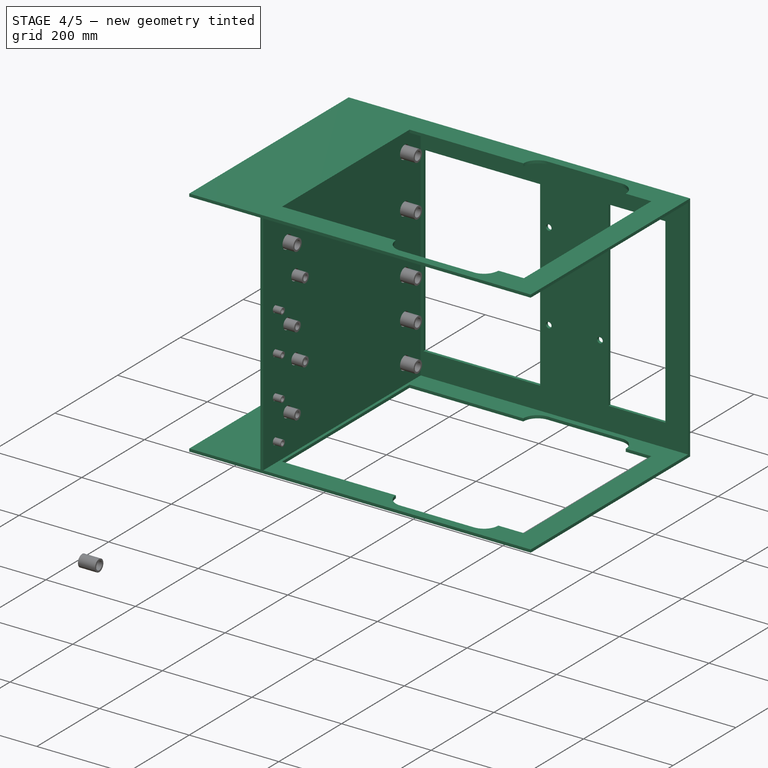
[diagram: stage 4 of 5 — iso view after this stage's code; geometry added in this stage tinted green]
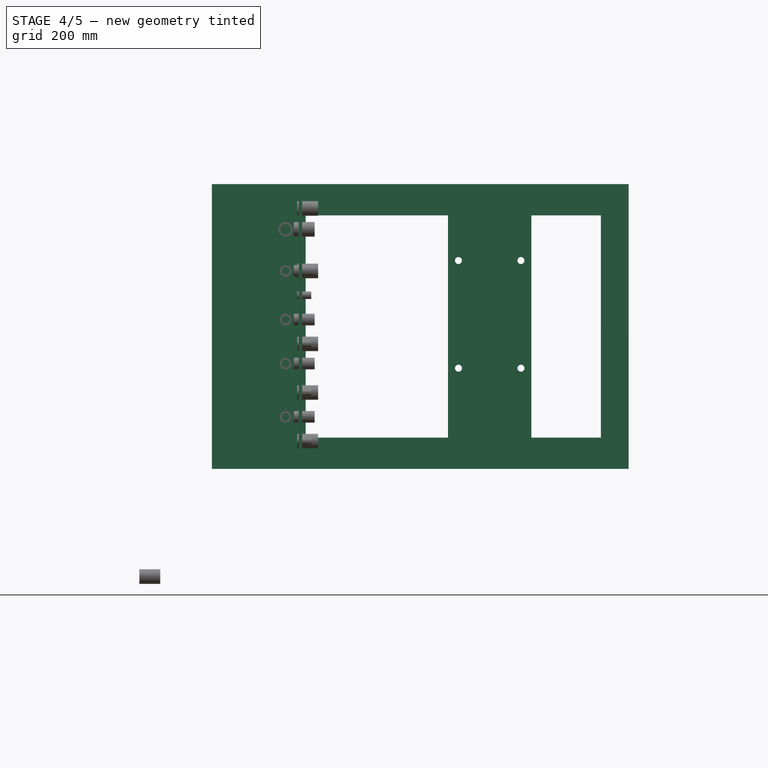
[diagram: stage 4 of 5 — front view after this stage's code; geometry added in this stage tinted green]
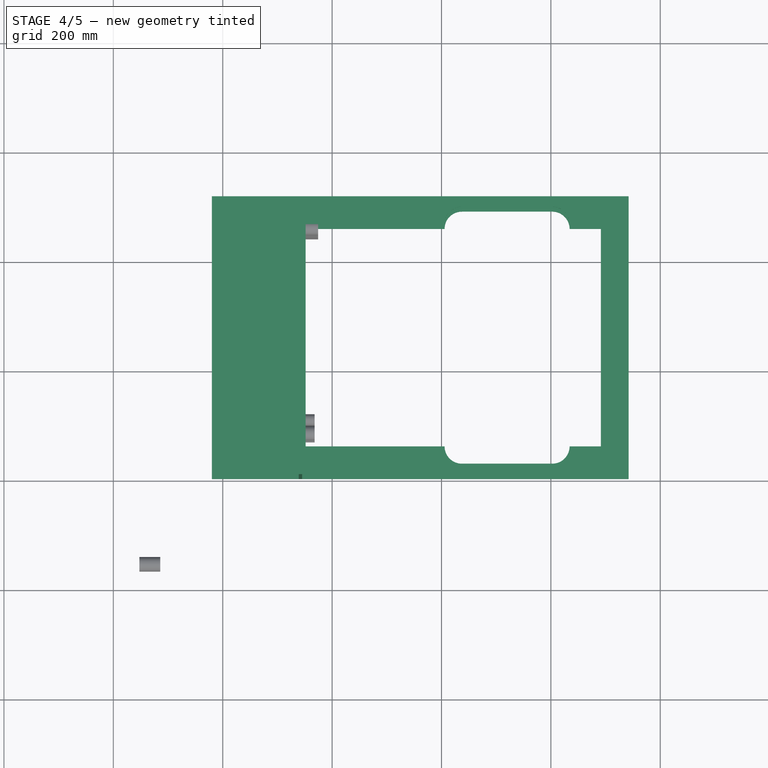
[diagram: stage 4 of 5 — top view after this stage's code; geometry added in this stage tinted green]
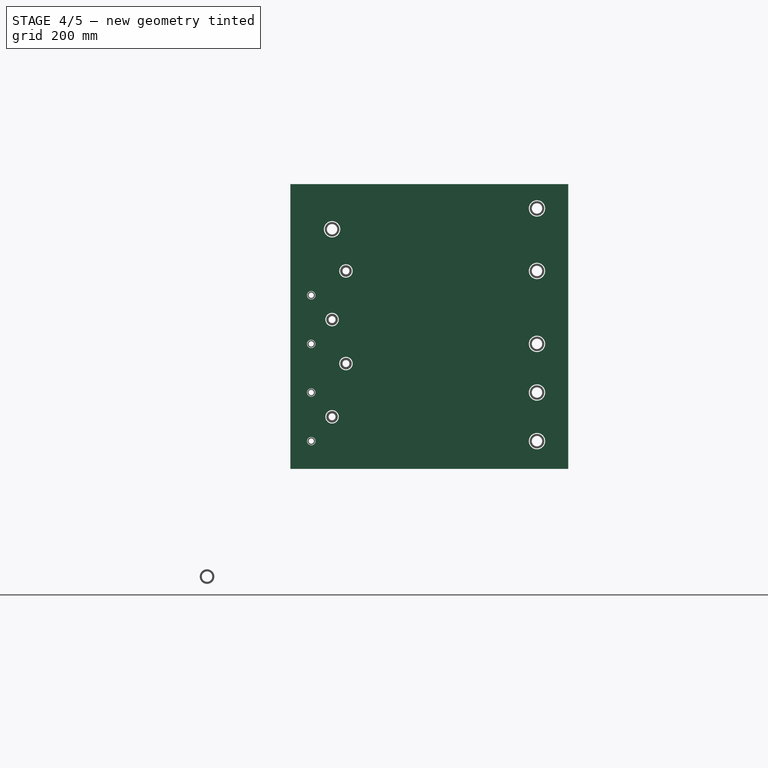
[diagram: stage 4 of 5 — right view after this stage's code; geometry added in this stage tinted green]
FEATURE [PartDesign::Pad] Pad009  label="inner_tank wall"
  Length = 6.35
  Length2 = 100
  Placement = pos=(-254,-254,-609.6) rot=(0.57735,0.57735,0.57735;2.0944rad)
  Sketch = -> Sketch004
  Type = 0
FEATURE [Part::FeaturePython] Clone072  label="Clone of inner_tank wall"  # Draft clone (typed FeaturePython)
  Objects = -> [Pad009]
  Placement = pos=(138.9,250.825,254) rot=(0.57735,0.57735,0.57735;2.0944rad)
  Scale = (1,1,1)
FEATURE [App::FeaturePython] circularEdgeConstraint01  # a2plus constraint (typed FeaturePython)
  Object1 = Compound002002
  Object2 = Clone071
  SubElement1 = Edge5
  SubElement2 = Edge38
  Type = circularEdge
  directionConstraint = 0
  lockRotation = false
  offset = -6.35
FEATURE [PartDesign::Pad] Pad  label="sides"
  Length = 6.35
  Length2 = 100
  Placement = pos=(914.4,1066.8,914.4) rot=(0,0,1;0rad)
  Sketch = -> Sketch
  Type = 0
FEATURE [Part::FeaturePython] Clone  label="Clone of sides Right"  # Draft clone (typed FeaturePython)
  Objects = -> [Pad]
  Placement = pos=(361.15,254,508) rot=(0,0,1;0rad)
  Scale = (1,1,1)
FEATURE [Part::FeaturePython] Clone073  label="Clone of sides001 Left"  # Draft clone (typed FeaturePython)
  Objects = -> [Pad]
  Placement = pos=(361.15,254,-6.35) rot=(0,0,1;0rad)
  Scale = (1,1,1)
FEATURE [PartDesign::Pad] Pad010  label="Bottom"
  Length = 6.35
  Length2 = 100
  Placement = pos=(0,0,914.4) rot=(1,0,0;1.5708rad)
  Sketch = -> Sketch003
  Type = 0
FEATURE [Part::FeaturePython] Clone074  label="Clone of Bottom"  # Draft clone (typed FeaturePython)
  Objects = -> [Pad010]
  Placement = pos=(361.15,508,254) rot=(1,0,0;1.5708rad)
  Scale = (1,1,1)
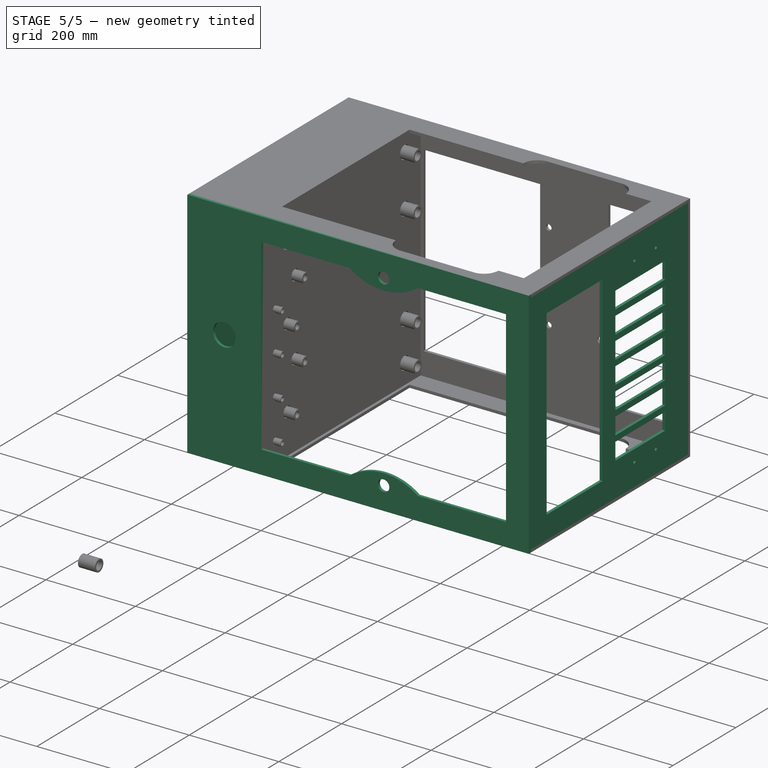
[diagram: stage 5 of 5 — iso view after this stage's code; geometry added in this stage tinted green]
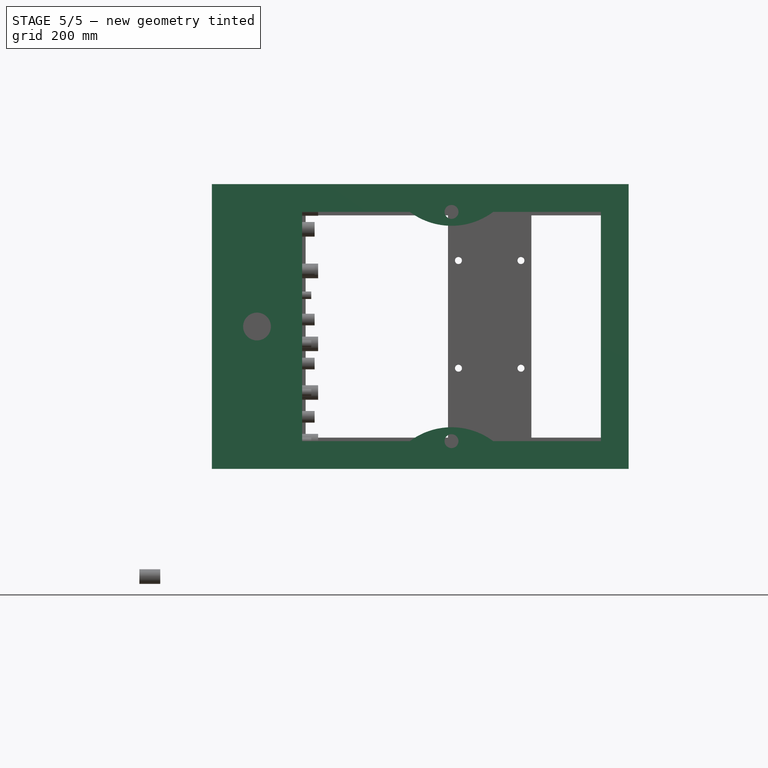
[diagram: stage 5 of 5 — front view after this stage's code; geometry added in this stage tinted green]
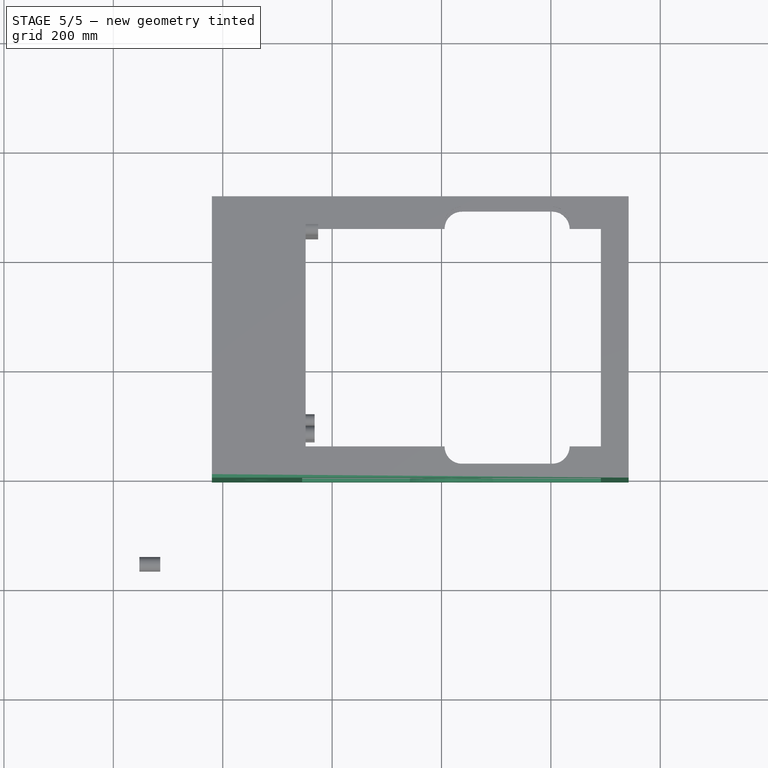
[diagram: stage 5 of 5 — top view after this stage's code; geometry added in this stage tinted green]
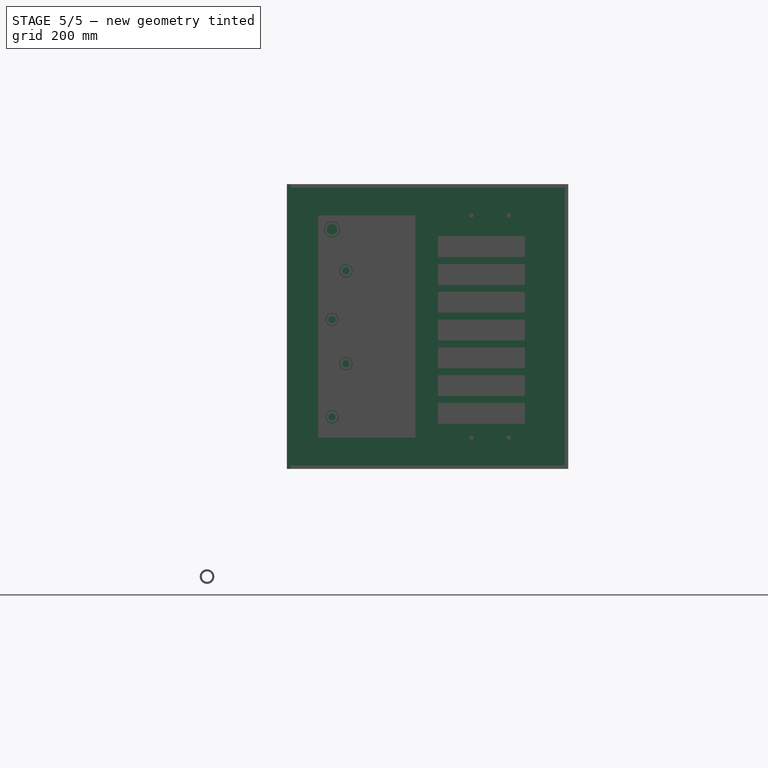
[diagram: stage 5 of 5 — right view after this stage's code; geometry added in this stage tinted green]
FEATURE [Sketcher::SketchObject] Sketch001  label="frame front"
  Placement = pos=(914.4,1422.4,914.4) rot=(0.57735,0.57735,-0.57735;4.18879rad)
  sketch-geometry (20):
    g0: LineSegment StartX=-250.825 StartY=254 StartZ=0 EndX=250.825 EndY=254 EndZ=0
    g1: LineSegment StartX=250.825 StartY=254 StartZ=0 EndX=250.825 EndY=-254 EndZ=0
    g2: LineSegment StartX=250.825 StartY=-254 StartZ=0 EndX=-250.825 EndY=-254 EndZ=0
    g3: LineSegment StartX=-250.825 StartY=-254 StartZ=0 EndX=-250.825 EndY=254 EndZ=0
    g4: LineSegment StartX=-200.025 StartY=203.2 StartZ=0 EndX=-22.225 EndY=203.2 EndZ=0
    g5: LineSegment StartX=-22.225 StartY=-203.2 StartZ=0 EndX=-200.025 EndY=-203.2 EndZ=0
    g6: LineSegment StartX=-200.025 StartY=-203.2 StartZ=0 EndX=-200.025 EndY=203.2 EndZ=0
    g7: LineSegment [constr] StartX=-200.025 StartY=203.2 StartZ=0 EndX=-200.025 EndY=254 EndZ=0
    g8: LineSegment [constr] StartX=-200.025 StartY=203.2 StartZ=0 EndX=-250.825 EndY=203.2 EndZ=0
    g9: LineSegment [constr] StartX=-200.025 StartY=-203.2 StartZ=0 EndX=-200.025 EndY=-254 EndZ=0
    g10: LineSegment StartX=-22.225 StartY=203.2 StartZ=0 EndX=-22.225 EndY=-203.2 EndZ=0
    g11: LineSegment [constr] StartX=-22.225 StartY=203.2 StartZ=0 EndX=250.825 EndY=203.2 EndZ=0
    g12: LineSegment [constr] StartX=-22.225 StartY=-203.2 StartZ=0 EndX=250.825 EndY=-203.2 EndZ=0
    g13: LineSegment [constr] StartX=114.3 StartY=203.2 StartZ=0 EndX=114.3 EndY=-203.2 EndZ=0
    g14: Circle CenterX=80.1688 CenterY=203.2 CenterZ=0 NormalX=0 NormalY=0 NormalZ=1 Radius=3.81
    g15: Circle CenterX=148.431 CenterY=203.2 CenterZ=0 NormalX=0 NormalY=0 NormalZ=1 Radius=3.81
    g16: Circle CenterX=80.1688 CenterY=-203.2 CenterZ=0 NormalX=0 NormalY=0 NormalZ=1 Radius=3.81
    g17: Circle CenterX=148.431 CenterY=-203.2 CenterZ=0 NormalX=0 NormalY=0 NormalZ=1 Radius=3.81
    g18: LineSegment [constr] StartX=46.0375 StartY=203.2 StartZ=0 EndX=46.0375 EndY=-203.2 EndZ=0
    g19: LineSegment [constr] StartX=182.562 StartY=203.2 StartZ=0 EndX=182.562 EndY=-203.2 EndZ=0
  constraints (62):
    c: Coincident(g0,g1)
    c: Coincident(g1,g2)
    c: Coincident(g2,g3)
    c: Coincident(g3,g0)
    c: Horizontal(g0)
    c: Horizontal(g2)
    c: Vertical(g1)
    c: Vertical(g3)
    c: DistanceX(g0,g0) = 501.65  'outer edge'
    c: Symmetric(g2,g0,g-1)
    c: Coincident(g5,g6)
    c: Coincident(g6,g4)
    c: Horizontal(g4)
    c: Horizontal(g5)
    c: Vertical(g6)
    c: Equal(g0,g2)
    c: Equal(g3,g1)
    c: DistanceY(g3,g3) = 508
    c: Equal(g4,g5)
    c: Coincident(g7,g4)
    c: PointOnObject(g7,g0)
    c: Vertical(g7)
    c: Coincident(g8,g4)
    c: PointOnObject(g8,g3)
    c: Horizontal(g8)
    c: Equal(g7,g8)
    c: DistanceY(g7,g7) = 50.8
    c: Coincident(g9,g5)
    c: PointOnObject(g9,g2)
    c: Vertical(g9)
    c: Equal(g9,g7)
    c: DistanceX(g5,g5) = 177.8
    c: Coincident(g10,g4)
    c: Coincident(g10,g5)
    c: Coincident(g11,g4)
    c: PointOnObject(g11,g1)
    c: Horizontal(g11)
    c: Coincident(g12,g5)
    c: PointOnObject(g12,g1)
    c: Horizontal(g12)
    c: Vertical(g13)
    c: Symmetric(g5,g12,g13)
    c: Radius(g14) = 3.81
    c: Equal(g14,g15) = 3.81
    c: PointOnObject(g16,g12)
    c: Equal(g16,g14)
    c: PointOnObject(g17,g12)
    c: Equal(g17,g16)
    c: PointOnObject(g18,g12)
    c: Vertical(g18)
    c: PointOnObject(g19,g12)
    c: Vertical(g19)
    c: Symmetric(g13,g5,g18)
    c: Symmetric(g13,g12,g19)
    c: Symmetric(g18,g13,g16)
    c: Symmetric(g19,g13,g17)
    c: PointOnObject(g18,g11)
    c: PointOnObject(g14,g11)
    c: Symmetric(g18,g13,g14)
    c: PointOnObject(g19,g11)
    c: PointOnObject(g15,g11)
    c: Symmetric(g19,g13,g15)
FEATURE [Sketcher::SketchObject] Sketch  label="sides pattern"
  Placement = pos=(914.4,1066.8,914.4) rot=(0,0,1;0rad)
  sketch-geometry (26):
    g0: LineSegment StartX=-381 StartY=254 StartZ=0 EndX=381 EndY=254 EndZ=0
    g1: LineSegment StartX=381 StartY=254 StartZ=0 EndX=381 EndY=-254 EndZ=0
    g2: LineSegment StartX=381 StartY=-254 StartZ=0 EndX=-381 EndY=-254 EndZ=0
    g3: LineSegment StartX=-381 StartY=-254 StartZ=0 EndX=-381 EndY=254 EndZ=0
    g4: LineSegment StartX=330.2 StartY=-203.2 StartZ=0 EndX=330.2 EndY=203.2 EndZ=0
    g5: LineSegment StartX=-209.55 StartY=203.2 StartZ=0 EndX=-209.55 EndY=-203.2 EndZ=0
    g6: LineSegment StartX=-209.55 StartY=203.2 StartZ=0 EndX=44.45 EndY=203.2 EndZ=0
    g7: LineSegment StartX=330.2 StartY=203.2 StartZ=0 EndX=273.05 EndY=203.2 EndZ=0
    g8: ArcOfCircle CenterX=241.3 CenterY=203.2 CenterZ=0 NormalX=0 NormalY=0 NormalZ=1 Radius=31.75 StartAngle=0 EndAngle=1.5708
    g9: LineSegment [constr] StartX=273.05 StartY=203.2 StartZ=0 EndX=241.3 EndY=203.2 EndZ=0
    g10: ArcOfCircle CenterX=76.2 CenterY=203.2 CenterZ=0 NormalX=0 NormalY=0 NormalZ=1 Radius=31.75 StartAngle=1.5708 EndAngle=3.14159
    g11: LineSegment [constr] StartX=44.45 StartY=203.2 StartZ=0 EndX=76.2 EndY=203.2 EndZ=0
    g12: LineSegment [constr] StartX=76.2 StartY=203.2 StartZ=0 EndX=241.3 EndY=203.2 EndZ=0
    g13: LineSegment StartX=76.2 StartY=234.95 StartZ=0 EndX=241.3 EndY=234.95 EndZ=0
    g14: LineSegment [constr] StartX=76.2 StartY=203.2 StartZ=0 EndX=76.2 EndY=234.95 EndZ=0
    g15: LineSegment [constr] StartX=241.3 StartY=203.2 StartZ=0 EndX=241.3 EndY=234.95 EndZ=0
    g16: LineSegment StartX=-209.55 StartY=-203.2 StartZ=0 EndX=44.45 EndY=-203.2 EndZ=0
    g17: LineSegment [constr] StartX=44.45 StartY=-203.2 StartZ=0 EndX=76.2 EndY=-203.2 EndZ=0
    g18: LineSegment [constr] StartX=76.2 StartY=-203.2 StartZ=0 EndX=241.3 EndY=-203.2 EndZ=0
    g19: LineSegment [constr] StartX=241.3 StartY=-203.2 StartZ=0 EndX=273.05 EndY=-203.2 EndZ=0
    g20: LineSegment StartX=330.2 StartY=-203.2 StartZ=0 EndX=273.05 EndY=-203.2 EndZ=0
    g21: LineSegment [constr] StartX=76.2 StartY=-203.2 StartZ=0 EndX=76.2 EndY=-234.95 EndZ=0
    g22: LineSegment [constr] StartX=241.3 StartY=-203.2 StartZ=0 EndX=241.3 EndY=-234.95 EndZ=0
    g23: ArcOfCircle CenterX=76.2 CenterY=-203.2 CenterZ=0 NormalX=0 NormalY=0 NormalZ=1 Radius=31.75 StartAngle=3.14159 EndAngle=4.71239
    g24: ArcOfCircle CenterX=241.3 CenterY=-203.2 CenterZ=0 NormalX=0 NormalY=0 NormalZ=1 Radius=31.75 StartAngle=4.71239 EndAngle=6.28319
    g25: LineSegment StartX=76.2 StartY=-234.95 StartZ=0 EndX=241.3 EndY=-234.95 EndZ=0
  constraints (78):
    c: Coincident(g0,g1)
    c: Coincident(g1,g2)
    c: Coincident(g2,g3)
    c: Coincident(g3,g0)
    c: Horizontal(g2)
    c: Vertical(g1)
    c: Vertical(g3)
    c: Equal(g3,g1)
    c: Equal(g0,g2)
    c: Symmetric(g0,g1,g-1)
    c: Vertical(g5)
    c: Equal(g5,g4)
    c: DistanceY(g3,g3) = 508
    c: DistanceX(g2,g2) = 762
    c: DistanceY(g5,g5) = 406.4
    c: DistanceX(g4,g1) = 50.8
    c: DistanceX(g2,g5) = 171.45
    c: Symmetric(g4,g4,g-1)
    c: Coincident(g6,g5)
    c: Horizontal(g6)
    c: Coincident(g7,g4)
    c: Horizontal(g7)
    c: Coincident(g8,g7)
    c: Coincident(g9,g7)
    c: Coincident(g9,g8)
    c: Horizontal(g9)
    c: Coincident(g10,g6)
    c: Coincident(g11,g6)
    c: Coincident(g11,g10)
    c: Equal(g11,g9)
    c: Coincident(g12,g10)
    c: Coincident(g12,g8)
    c: Coincident(g13,g10)
    c: Coincident(g13,g8)
    c: DistanceX(g13,g13) = 165.1
    c: Coincident(g14,g10)
    c: Coincident(g14,g10)
    c: Vertical(g14)
    c: Coincident(g15,g8)
    c: Coincident(g15,g8)
    c: Vertical(g15)
    c: Equal(g14,g15)
    c: DistanceY(g14,g14) = 31.75
    c: Horizontal(g12)
    c: DistanceX(g8,g0) = 139.7
    c: Coincident(g16,g5)
    c: Horizontal(g16)
    c: Equal(g16,g6)
    c: Coincident(g17,g16)
    c: Horizontal(g17)
    c: Horizontal(g11)
    c: Coincident(g18,g17)
    c: Horizontal(g18)
    c: Horizontal(g19)
    c: Coincident(g20,g4)
    c: Coincident(g20,g19)
    c: Horizontal(g20)
    c: Equal(g7,g20)
    c: Coincident(g19,g18)
    c: Equal(g18,g12)
    c: Equal(g19,g17)
    c: Equal(g17,g11)
    c: Coincident(g21,g17)
    c: Vertical(g21)
    c: Coincident(g22,g18)
    c: Vertical(g22)
    c: Equal(g22,g21)
    c: Equal(g21,g15)
    c: Coincident(g23,g17)
    c: Coincident(g23,g16)
    c: Coincident(g23,g21)
    c: Coincident(g24,g18)
    c: Coincident(g24,g19)
    c: Coincident(g24,g22)
    c: Coincident(g25,g21)
    c: Coincident(g25,g22)
    c: Horizontal(g25)
    c: Equal(g25,g13)
FEATURE [Part::FeaturePython] powercubeframeside01_01  label="tank end 20x20"  # a2plus imported part (geometry in sourceFile) (typed FeaturePython)
  Placement = pos=(-19.8501,0,0) rot=(0,0,1;0rad)
  fixedPosition = true
  sourceFile = <userpath>/Documents/Power Cube v17.08/powercubeframeside01.fcstd
  timeLastImport = 1.51191e+09
  updateColors = true
FEATURE [Sketcher::SketchObject] Sketch002  label="tank top pattern"
  Placement = pos=(0,304.8,914.4) rot=(1,0,0;1.5708rad)
  sketch-geometry (23):
    g0: LineSegment StartX=-381 StartY=260.35 StartZ=0 EndX=381 EndY=260.35 EndZ=0
    g1: LineSegment StartX=381 StartY=260.35 StartZ=0 EndX=381 EndY=-260.35 EndZ=0
    g2: LineSegment StartX=381 StartY=-260.35 StartZ=0 EndX=-381 EndY=-260.35 EndZ=0
    g3: LineSegment StartX=-381 StartY=-260.35 StartZ=0 EndX=-381 EndY=260.35 EndZ=0
    g4: LineSegment StartX=-215.9 StartY=209.55 StartZ=0 EndX=-215.9 EndY=-209.55 EndZ=0
    g5: LineSegment StartX=330.2 StartY=209.55 StartZ=0 EndX=330.2 EndY=-209.55 EndZ=0
    g6: LineSegment StartX=-215.9 StartY=209.55 StartZ=0 EndX=-19.05 EndY=209.55 EndZ=0
    g7: LineSegment StartX=330.2 StartY=209.55 StartZ=0 EndX=133.35 EndY=209.55 EndZ=0
    g8: LineSegment StartX=330.2 StartY=-209.55 StartZ=0 EndX=133.35 EndY=-209.55 EndZ=0
    g9: LineSegment StartX=-215.9 StartY=-209.55 StartZ=0 EndX=-19.05 EndY=-209.55 EndZ=0
    g10: LineSegment [constr] StartX=-19.05 StartY=209.55 StartZ=0 EndX=133.35 EndY=209.55 EndZ=0
    g11: LineSegment [constr] StartX=-19.05 StartY=-209.55 StartZ=0 EndX=133.35 EndY=-209.55 EndZ=0
    g12: LineSegment [constr] StartX=330.2 StartY=209.55 StartZ=0 EndX=330.2 EndY=260.35 EndZ=0
    g13: LineSegment [constr] StartX=330.2 StartY=-209.55 StartZ=0 EndX=381 EndY=-209.55 EndZ=0
    g14: ArcOfCircle CenterX=57.15 CenterY=-311.15 CenterZ=0 NormalX=0 NormalY=0 NormalZ=1 Radius=127 StartAngle=0.927295 EndAngle=2.2143
    g15: ArcOfCircle CenterX=57.15 CenterY=311.15 CenterZ=0 NormalX=0 NormalY=0 NormalZ=1 Radius=127 StartAngle=4.06889 EndAngle=5.35589
    g16: Circle CenterX=57.15 CenterY=209.55 CenterZ=0 NormalX=0 NormalY=0 NormalZ=1 Radius=12.7
    g17: Circle CenterX=57.15 CenterY=-209.55 CenterZ=0 NormalX=0 NormalY=0 NormalZ=1 Radius=12.7
    g18: LineSegment [constr] StartX=-298.45 StartY=260.35 StartZ=0 EndX=-298.45 EndY=0 EndZ=0
    g19: LineSegment [constr] StartX=-298.45 StartY=-260.35 StartZ=0 EndX=-298.45 EndY=0 EndZ=0
    g20: LineSegment [constr] StartX=-381 StartY=0 StartZ=0 EndX=-298.45 EndY=0 EndZ=0
    g21: LineSegment [constr] StartX=-298.45 StartY=0 StartZ=0 EndX=-215.9 EndY=0 EndZ=0
    g22: Circle CenterX=-298.45 CenterY=0 CenterZ=0 NormalX=0 NormalY=0 NormalZ=1 Radius=25.4
  constraints (68):
    c: Coincident(g0,g1)
    c: Coincident(g1,g2)
    c: Coincident(g2,g3)
    c: Coincident(g3,g0)
    c: Horizontal(g0)
    c: Vertical(g1)
    c: Equal(g1,g3)  'Constraint7'
    c: Equal(g0,g2)
    c: DistanceY(g3,g3) = 520.7
    c: DistanceX(g0,g0) = 762
    c: Symmetric(g0,g1,g-1)
    c: Vertical(g5)
    c: Equal(g4,g5)
    c: DistanceX(g2,g4) = 165.1
    c: Coincident(g6,g4)
    c: Horizontal(g6)
    c: Coincident(g7,g5)
    c: Horizontal(g7)
    c: Coincident(g8,g5)
    c: Horizontal(g8)
    c: Coincident(g9,g4)
    c: Horizontal(g9)
    c: Equal(g6,g7)
    c: Equal(g7,g8)
    c: Equal(g8,g9)
    c: Coincident(g10,g6)
    c: Horizontal(g10)
    c: Coincident(g10,g7)
    c: Coincident(g11,g9)
    c: Coincident(g11,g8)
    c: Equal(g11,g10)
    c: Coincident(g12,g5)
    c: PointOnObject(g12,g0)
    c: Vertical(g12)
    c: DistanceY(g12,g12) = 50.8
    c: Symmetric(g4,g4,g-1)
    c: Coincident(g13,g5)
    c: PointOnObject(g13,g1)
    c: Horizontal(g13)
    c: Equal(g13,g12)
    c: DistanceX(g11,g11) = 152.4
    c: Coincident(g14,g9)
    c: Coincident(g14,g8)
    c: Radius(g14) = 127
    c: Coincident(g15,g6)
    c: Coincident(g15,g7)
    c: Equal(g15,g14)
    c: PointOnObject(g16,g10)
    c: Symmetric(g6,g7,g16)
    c: Radius(g16) = 12.7
    c: PointOnObject(g17,g11)
    c: Equal(g17,g16)
    c: Symmetric(g9,g8,g17)
    c: PointOnObject(g18,g0)
    c: Vertical(g18)
    c: PointOnObject(g19,g2)
    c: Coincident(g19,g18)
    c: Vertical(g19)
    c: PointOnObject(g20,g3)
    c: Coincident(g20,g18)
    c: Horizontal(g20)
    c: Coincident(g21,g18)
    c: PointOnObject(g21,g4)
    c: Horizontal(g21)
    c: Equal(g21,g20)
    c: Equal(g18,g19)
    c: Coincident(g22,g18)
    c: Radius(g22) = 25.4
FEATURE [Sketcher::SketchObject] Sketch003  label="Bottom mount"
  Placement = pos=(0,0,914.4) rot=(1,0,0;1.5708rad)
  sketch-geometry (30):
    g0: LineSegment StartX=-381 StartY=254 StartZ=0 EndX=381 EndY=254 EndZ=0
    g1: LineSegment StartX=381 StartY=254 StartZ=0 EndX=381 EndY=-254 EndZ=0
    g2: LineSegment StartX=381 StartY=-254 StartZ=0 EndX=-381 EndY=-254 EndZ=0
    g3: LineSegment StartX=203.2 StartY=203.2 StartZ=0 EndX=330.2 EndY=203.2 EndZ=0
    g4: LineSegment StartX=330.2 StartY=203.2 StartZ=0 EndX=330.2 EndY=-203.2 EndZ=0
    g5: LineSegment StartX=330.2 StartY=-203.2 StartZ=0 EndX=203.2 EndY=-203.2 EndZ=0
    g6: LineSegment StartX=203.2 StartY=-203.2 StartZ=0 EndX=203.2 EndY=203.2 EndZ=0
    g7: LineSegment [constr] StartX=330.2 StartY=203.2 StartZ=0 EndX=381 EndY=203.2 EndZ=0
    g8: LineSegment [constr] StartX=330.2 StartY=203.2 StartZ=0 EndX=330.2 EndY=254 EndZ=0
    g9: LineSegment [constr] StartX=330.2 StartY=-203.2 StartZ=0 EndX=330.2 EndY=-254 EndZ=0
    g10: LineSegment [constr] StartX=50.8 StartY=-203.2 StartZ=0 EndX=50.8 EndY=-254 EndZ=0
    g11: LineSegment StartX=50.8 StartY=203.2 StartZ=0 EndX=50.8 EndY=-203.2 EndZ=0
    g12: LineSegment [constr] StartX=50.8 StartY=203.2 StartZ=0 EndX=50.8 EndY=254 EndZ=0
    g13: LineSegment [constr] StartX=203.2 StartY=203.2 StartZ=0 EndX=50.8 EndY=203.2 EndZ=0
    g14: LineSegment StartX=-381 StartY=254 StartZ=0 EndX=-381 EndY=-254 EndZ=0
    g15: LineSegment StartX=50.8 StartY=203.2 StartZ=0 EndX=-209.55 EndY=203.2 EndZ=0
    g16: LineSegment StartX=50.8 StartY=-203.2 StartZ=0 EndX=-209.55 EndY=-203.2 EndZ=0
    g17: LineSegment StartX=-209.55 StartY=203.2 StartZ=0 EndX=-209.55 EndY=-203.2 EndZ=0
    g18: LineSegment [constr] StartX=203.2 StartY=203.2 StartZ=0 EndX=203.2 EndY=120.65 EndZ=0
    g19: LineSegment [constr] StartX=203.2 StartY=120.65 StartZ=0 EndX=184.15 EndY=120.65 EndZ=0
    g20: LineSegment [constr] StartX=50.8 StartY=203.2 StartZ=0 EndX=50.8 EndY=120.65 EndZ=0
    g21: LineSegment [constr] StartX=50.8 StartY=120.65 StartZ=0 EndX=69.85 EndY=120.65 EndZ=0
    g22: LineSegment [constr] StartX=203.2 StartY=-203.2 StartZ=0 EndX=203.2 EndY=-76.2 EndZ=0
    g23: LineSegment [constr] StartX=50.8 StartY=-203.2 StartZ=0 EndX=50.8 EndY=-76.2 EndZ=0
    g24: LineSegment [constr] StartX=50.8 StartY=-76.2 StartZ=0 EndX=69.85 EndY=-76.2 EndZ=0
    g25: LineSegment [constr] StartX=203.2 StartY=-76.2 StartZ=0 EndX=184.15 EndY=-76.2 EndZ=0
    g26: Circle CenterX=69.85 CenterY=120.65 CenterZ=0 NormalX=0 NormalY=0 NormalZ=1 Radius=6.35
    g27: Circle CenterX=184.15 CenterY=120.65 CenterZ=0 NormalX=0 NormalY=0 NormalZ=1 Radius=6.35
    g28: Circle CenterX=69.85 CenterY=-76.2 CenterZ=0 NormalX=0 NormalY=0 NormalZ=1 Radius=6.35
    g29: Circle CenterX=184.15 CenterY=-76.2 CenterZ=0 NormalX=0 NormalY=0 NormalZ=1 Radius=6.35
  constraints (85):
    c: Coincident(g0,g1)
    c: Coincident(g1,g2)
    c: Horizontal(g0)
    c: Vertical(g1)
    c: Symmetric(g2,g0,g-1)
    c: Equal(g2,g0)
    c: DistanceY(g2,g0) = 508
    c: DistanceX(g2,g2) = 762
    c: Coincident(g3,g4)
    c: Coincident(g4,g5)
    c: Coincident(g5,g6)
    c: Coincident(g6,g3)
    c: Horizontal(g5)
    c: Vertical(g4)
    c: Equal(g4,g6)
    c: Equal(g3,g5)
    c: Coincident(g7,g3)
    c: PointOnObject(g7,g1)
    c: Horizontal(g7)
    c: Coincident(g8,g3)
    c: PointOnObject(g8,g0)
    c: Vertical(g8)
    c: Coincident(g9,g4)
    c: PointOnObject(g9,g2)
    c: Vertical(g9)
    c: PointOnObject(g10,g2)
    c: Vertical(g10)
    c: Equal(g10,g9)
    c: Equal(g9,g7)
    c: Equal(g7,g8)
    c: DistanceY(g10,g10) = 50.8
    c: PointOnObject(g12,g0)
    c: Vertical(g12)
    c: Equal(g12,g8)
    c: Coincident(g13,g3)
    c: DistanceX(g13,g13) = 152.4
    c: Coincident(g14,g0)
    c: Coincident(g14,g2)
    c: Equal(g14,g1)
    c: Horizontal(g15)
    c: Horizontal(g16)
    c: Coincident(g17,g15)
    c: Coincident(g17,g16)
    c: Vertical(g17)
    c: Equal(g15,g16)
    c: DistanceX(g2,g16) = 171.45
    c: Coincident(g18,g3)
    c: PointOnObject(g18,g6)
    c: DistanceY(g18,g18) = 82.55
    c: Coincident(g19,g18)
    c: Horizontal(g19)
    c: DistanceX(g19,g19) = 19.05
    c: PointOnObject(g20,g11)
    c: Vertical(g20)
    c: Equal(g18,g20)
    c: Coincident(g21,g20)
    c: Horizontal(g21)
    c: Coincident(g22,g5)
    c: PointOnObject(g22,g6)
    c: Coincident(g23,g11)
    c: PointOnObject(g23,g11)
    c: Equal(g22,g23)
    c: Coincident(g24,g23)
    c: Horizontal(g24)
    c: Coincident(g25,g22)
    c: Horizontal(g25)
    c: Equal(g19,g21)
    c: Equal(g21,g25)
    c: Equal(g25,g24)
    c: Coincident(g26,g21)
    c: Coincident(g27,g19)
    c: Coincident(g28,g24)
    c: Coincident(g29,g25)
    c: Radius(g29) = 6.35
    c: Equal(g29,g28)
    c: Equal(g28,g26)
    c: Equal(g26,g27)
    c: Coincident(g10,g11)
    c: Coincident(g20,g12)
    c: Coincident(g12,g13)
    c: Coincident(g11,g12)
    c: Coincident(g16,g10)
    c: Equal(g11,g17)
    c: DistanceY(g24,g21) = 196.85
    c: DistanceX(g3,g3) = 127
FEATURE [Sketcher::SketchObject] Sketch004  label="inner tank wall"
  Placement = pos=(-254,-254,-609.6) rot=(0.57735,0.57735,0.57735;2.0944rad)
  sketch-geometry (48):
    g0: LineSegment StartX=-250.825 StartY=254 StartZ=0 EndX=250.825 EndY=254 EndZ=0
    g1: LineSegment StartX=250.825 StartY=254 StartZ=0 EndX=250.825 EndY=-254 EndZ=0
    g2: LineSegment StartX=-250.825 StartY=-254 StartZ=0 EndX=-250.825 EndY=254 EndZ=0
    g3: Circle CenterX=-174.625 CenterY=177.8 CenterZ=0 NormalX=0 NormalY=0 NormalZ=1 Radius=14.9225
    g4: Circle CenterX=200.025 CenterY=215.9 CenterZ=0 NormalX=0 NormalY=0 NormalZ=1 Radius=14.9225
    g5: LineSegment [constr] StartX=-250.825 StartY=177.8 StartZ=0 EndX=250.825 EndY=177.8 EndZ=0
    g6: LineSegment [constr] StartX=-250.825 StartY=101.6 StartZ=0 EndX=250.825 EndY=101.6 EndZ=0
    g7: LineSegment [constr] StartX=-250.825 StartY=-67.7333 StartZ=0 EndX=250.825 EndY=-67.7333 EndZ=0
    g8: LineSegment [constr] StartX=-250.825 StartY=-165.1 StartZ=0 EndX=250.825 EndY=-165.1 EndZ=0
    g9: LineSegment [constr] StartX=-250.825 StartY=12.7 StartZ=0 EndX=250.825 EndY=12.7 EndZ=0
    g10: Circle CenterX=-149.225 CenterY=101.6 CenterZ=0 NormalX=0 NormalY=0 NormalZ=1 Radius=12.2555
    g11: Circle CenterX=-174.625 CenterY=12.7 CenterZ=0 NormalX=0 NormalY=0 NormalZ=1 Radius=12.2555
    g12: Circle CenterX=-174.625 CenterY=-165.1 CenterZ=0 NormalX=0 NormalY=0 NormalZ=1 Radius=12.2555
    g13: LineSegment [constr] StartX=200.025 StartY=177.8 StartZ=0 EndX=200.025 EndY=101.6 EndZ=0
    g14: LineSegment [constr] StartX=200.025 StartY=101.6 StartZ=0 EndX=200.025 EndY=25.4 EndZ=0
    g15: LineSegment [constr] StartX=200.025 StartY=-31.75 StartZ=0 EndX=200.025 EndY=101.6 EndZ=0
    g16: LineSegment [constr] StartX=200.025 StartY=-67.7333 StartZ=0 EndX=200.025 EndY=-160.867 EndZ=0
    g17: LineSegment StartX=-250.825 StartY=-254 StartZ=0 EndX=250.825 EndY=-254 EndZ=0
    g18: LineSegment [constr] StartX=200.025 StartY=-160.867 StartZ=0 EndX=200.025 EndY=-254 EndZ=0
    g19: LineSegment [constr] StartX=200.025 StartY=25.4 StartZ=0 EndX=200.025 EndY=-67.7333 EndZ=0
    g20: LineSegment [constr] StartX=200.025 StartY=177.8 StartZ=0 EndX=200.025 EndY=254 EndZ=0
    g21: LineSegment [constr] StartX=-149.225 StartY=254 StartZ=0 EndX=-149.225 EndY=101.6 EndZ=0
    g22: LineSegment [constr] StartX=-174.625 StartY=177.8 StartZ=0 EndX=-174.625 EndY=12.7 EndZ=0
    g23: LineSegment [constr] StartX=-149.225 StartY=101.6 StartZ=0 EndX=-149.225 EndY=-67.7333 EndZ=0
    g24: LineSegment [constr] StartX=-174.625 StartY=12.7 StartZ=0 EndX=-174.625 EndY=-165.1 EndZ=0
    g25: LineSegment [constr] StartX=-149.225 StartY=-67.7333 StartZ=0 EndX=-149.225 EndY=-254 EndZ=0
    g26: Circle CenterX=-149.225 CenterY=-67.7333 CenterZ=0 NormalX=0 NormalY=0 NormalZ=1 Radius=12.2555
    g27: LineSegment [constr] StartX=-250.825 StartY=57.15 StartZ=0 EndX=250.825 EndY=57.15 EndZ=0
    g28: LineSegment [constr] StartX=-250.825 StartY=-31.75 StartZ=0 EndX=250.825 EndY=-31.75 EndZ=0
    g29: LineSegment [constr] StartX=-250.825 StartY=-120.65 StartZ=0 EndX=250.825 EndY=-120.65 EndZ=0
    g30: LineSegment [constr] StartX=-250.825 StartY=-209.55 StartZ=0 EndX=250.825 EndY=-209.55 EndZ=0
    g31: LineSegment [constr] StartX=-212.725 StartY=-254 StartZ=0 EndX=-212.725 EndY=-209.55 EndZ=0
    g32: LineSegment [constr] StartX=-212.725 StartY=-209.55 StartZ=0 EndX=-212.725 EndY=-165.1 EndZ=0
    g33: LineSegment [constr] StartX=-212.725 StartY=-165.1 StartZ=0 EndX=-212.725 EndY=-120.65 EndZ=0
    g34: LineSegment [constr] StartX=-212.725 StartY=-120.65 StartZ=0 EndX=-212.725 EndY=-76.2 EndZ=0
    g35: LineSegment [constr] StartX=-212.725 StartY=-76.2 StartZ=0 EndX=-212.725 EndY=-31.75 EndZ=0
    g36: LineSegment [constr] StartX=-212.725 StartY=-31.75 StartZ=0 EndX=-212.725 EndY=12.7 EndZ=0
    g37: LineSegment [constr] StartX=-212.725 StartY=12.7 StartZ=0 EndX=-212.725 EndY=57.15 EndZ=0
    g38: LineSegment [constr] StartX=-212.725 StartY=57.15 StartZ=0 EndX=-212.725 EndY=101.6 EndZ=0
    g39: Circle CenterX=-212.725 CenterY=-209.55 CenterZ=0 NormalX=0 NormalY=0 NormalZ=1 Radius=7.62
    g40: Circle CenterX=-212.725 CenterY=-120.65 CenterZ=0 NormalX=0 NormalY=0 NormalZ=1 Radius=7.62
    g41: Circle CenterX=-212.725 CenterY=-31.75 CenterZ=0 NormalX=0 NormalY=0 NormalZ=1 Radius=7.62
    g42: Circle CenterX=-212.725 CenterY=57.15 CenterZ=0 NormalX=0 NormalY=0 NormalZ=1 Radius=7.62
    g43: LineSegment [constr] StartX=-212.725 StartY=101.6 StartZ=0 EndX=-212.725 EndY=177.8 EndZ=0
    g44: Circle CenterX=200.025 CenterY=-209.55 CenterZ=0 NormalX=0 NormalY=0 NormalZ=1 Radius=14.9225
    g45: Circle CenterX=200.025 CenterY=-120.65 CenterZ=0 NormalX=0 NormalY=0 NormalZ=1 Radius=14.9225
    g46: Circle CenterX=200.025 CenterY=101.6 CenterZ=0 NormalX=0 NormalY=0 NormalZ=1 Radius=14.9225
    g47: Circle CenterX=200.025 CenterY=-31.75 CenterZ=0 NormalX=0 NormalY=0 NormalZ=1 Radius=14.9225
  constraints (152):
    c: Horizontal(g0)
    c: Coincident(g1,g0)
    c: Vertical(g1)
    c: Vertical(g2)
    c: Coincident(g2,g0)
    c: Equal(g2,g1)
    c: DistanceX(g0,g0) = 501.65
    c: DistanceY(g2,g2) = 508
    c: Symmetric(g0,g2,g-1)
    c: Radius(g3) = 14.9225  '3/4" NPT filtered return'
    c: PointOnObject(g5,g1)  'Constraint17'
    c: Horizontal(g5)  'Constraint14'
    c: PointOnObject(g6,g2)  'Constraint16'
    c: PointOnObject(g6,g1)  'Constraint15'
    c: Horizontal(g6)
    c: PointOnObject(g7,g2)
    c: PointOnObject(g7,g1)
    c: Horizontal(g7)
    c: PointOnObject(g8,g2)
    c: PointOnObject(g8,g1)
    c: Horizontal(g8)
    c: PointOnObject(g5,g2)
    c: PointOnObject(g9,g2)
    c: PointOnObject(g9,g1)
    c: Horizontal(g9)
    c: Radius(g10) = 12.2555  '1/2" NPT unfiltered returns'
    c: PointOnObject(g3,g5)  'Constraint60'
    c: Radius(g4) = 14.9225  '3/4" NPT OD 1.05"'
    c: Equal(g10,g11)  'Constraint95'
    c: PointOnObject(g12,g8)  'Constraint35'
    c: PointOnObject(g13,g6)  'Constraint33'
    c: Vertical(g13)  'Constraint32'
    c: PointOnObject(g14,g6)
    c: Vertical(g14)
    c: Vertical(g15)
    c: PointOnObject(g16,g7)
    c: Vertical(g16)
    c: Coincident(g17,g2)
    c: Coincident(g17,g1)
    c: PointOnObject(g18,g17)
    c: Vertical(g18)
    c: Coincident(g18,g16)
    c: Coincident(g14,g13)
    c: Vertical(g19)
    c: Coincident(g19,g14)
    c: Coincident(g16,g19)
    c: PointOnObject(g20,g0)
    c: Vertical(g20)
    c: Coincident(g20,g13)
    c: DistanceX(g20,g0) = 50.8
    c: Equal(g18,g16)
    c: Equal(g16,g19)
    c: Equal(g14,g13)
    c: Equal(g13,g20)
    c: PointOnObject(g21,g0)
    c: PointOnObject(g21,g6)
    c: Vertical(g21)
    c: DistanceX(g0,g21) = 101.6
    c: Coincident(g10,g21)
    c: PointOnObject(g22,g5)
    c: PointOnObject(g22,g9)
    c: Vertical(g22)
    c: PointOnObject(g23,g6)
    c: PointOnObject(g23,g7)
    c: Vertical(g23)
    c: PointOnObject(g24,g9)
    c: PointOnObject(g24,g8)
    c: Vertical(g24)
    c: PointOnObject(g25,g7)
    c: PointOnObject(g25,g17)
    c: Vertical(g25)
    c: Coincident(g23,g10)
    c: Coincident(g25,g23)
    c: Coincident(g24,g11)
    c: Coincident(g11,g22)
    c: Coincident(g26,g23)
    c: Equal(g26,g12)
    c: Equal(g26,g11)
    c: Coincident(g12,g24)
    c: DistanceX(g5,g3) = 76.2
    c: Coincident(g22,g3)
    c: PointOnObject(g27,g2)
    c: PointOnObject(g27,g1)
    c: Horizontal(g27)
    c: PointOnObject(g28,g2)
    c: PointOnObject(g28,g1)
    c: Horizontal(g28)
    c: PointOnObject(g29,g2)
    c: PointOnObject(g29,g1)
    c: Horizontal(g29)
    c: PointOnObject(g30,g2)
    c: PointOnObject(g30,g1)
    c: Horizontal(g30)
    c: PointOnObject(g31,g17)
    c: PointOnObject(g31,g30)
    c: Vertical(g31)
    c: Coincident(g32,g31)
    c: PointOnObject(g32,g8)
    c: Vertical(g32)
    c: Coincident(g33,g32)
    c: PointOnObject(g33,g29)
    c: Vertical(g33)
    c: Coincident(g34,g33)
    c: Vertical(g34)
    c: Coincident(g35,g34)
    c: PointOnObject(g35,g28)
    c: Vertical(g35)
    c: Coincident(g36,g35)
    c: PointOnObject(g36,g9)
    c: Vertical(g36)
    c: Coincident(g37,g36)
    c: PointOnObject(g37,g27)
    c: Vertical(g37)
    c: Coincident(g38,g37)
    c: PointOnObject(g38,g6)
    c: Vertical(g38)
    c: Equal(g38,g37)
    c: Equal(g37,g36)
    c: Equal(g36,g35)
    c: Equal(g35,g34)
    c: Equal(g34,g33)
    c: Equal(g33,g32)
    c: Equal(g32,g31)
    c: DistanceX(g2,g31) = 38.1
    c: Coincident(g39,g31)
    c: Coincident(g40,g33)
    c: Coincident(g41,g35)
    c: Coincident(g42,g37)
    c: Radius(g39) = 7.62
    c: Equal(g39,g40)
    c: Equal(g40,g41)
    c: Equal(g41,g42)
    c: Coincident(g43,g38)
    c: PointOnObject(g43,g5)
    c: Vertical(g43)
    c: PointOnObject(g4,g20)
    c: DistanceY(g4,g20) = 38.1
    c: PointOnObject(g13,g5)
    c: PointOnObject(g44,g30)
    c: PointOnObject(g44,g18)
    c: Equal(g44,g4)
    c: PointOnObject(g45,g29)
    c: PointOnObject(g45,g16)
    c: Equal(g45,g4)
    c: PointOnObject(g15,g6)
    c: PointOnObject(g15,g28)
    c: DistanceX(g15,g6) = 50.8
    c: Coincident(g46,g15)
    c: Coincident(g47,g15)
    c: Equal(g47,g46)
    c: Equal(g46,g4)
    c: DistanceY(g3,g21) = 76.2
FEATURE [Part::Feature] Compound002002  label="Power Cube Tank Filler Cap001"
  Placement = pos=(62.6999,692.15,254) rot=(1,0,0;1.5708rad)
  shape: bbox 70.49 x 82.55 x 70.49 mm, 15 faces, 4 solids (baked)
FEATURE [PartDesign::Pad] Pad007  label=" frame front"
  Length = 6.35
  Length2 = 100
  Placement = pos=(914.4,1422.4,914.4) rot=(0.57735,0.57735,-0.57735;4.18879rad)
  Sketch = -> Sketch001
  Type = 0
FEATURE [Sketcher::SketchObject] Sketch005  label="grate pattern"
  Placement = pos=(914.4,1422.4,914.4) rot=(0.57735,0.57735,0.57735;2.0944rad)
  Support = -> Pad007 [Face13]
  sketch-geometry (10):
    g0: LineSegment [constr] StartX=-19.05 StartY=254 StartZ=0 EndX=247.65 EndY=254 EndZ=0
    g1: LineSegment [constr] StartX=247.65 StartY=254 StartZ=0 EndX=247.65 EndY=-254 EndZ=0
    g2: LineSegment [constr] StartX=247.65 StartY=-254 StartZ=0 EndX=-19.05 EndY=-254 EndZ=0
    g3: LineSegment [constr] StartX=-19.05 StartY=-254 StartZ=0 EndX=-19.05 EndY=254 EndZ=0
    g4: LineSegment StartX=19.05 StartY=177.8 StartZ=0 EndX=177.8 EndY=177.8 EndZ=0
    g5: LineSegment StartX=177.8 StartY=177.8 StartZ=0 EndX=177.8 EndY=139.7 EndZ=0
    g6: LineSegment StartX=177.8 StartY=139.7 StartZ=0 EndX=19.05 EndY=139.7 EndZ=0
    g7: LineSegment StartX=19.05 StartY=139.7 StartZ=0 EndX=19.05 EndY=177.8 EndZ=0
    g8: LineSegment [constr] StartX=177.8 StartY=177.8 StartZ=0 EndX=247.65 EndY=177.8 EndZ=0
    g9: LineSegment [constr] StartX=19.05 StartY=177.8 StartZ=0 EndX=-19.05 EndY=177.8 EndZ=0
  constraints (33):
    c: Coincident(g0,g1)
    c: Coincident(g1,g2)
    c: Coincident(g2,g3)
    c: Horizontal(g0)
    c: Horizontal(g2)
    c: Vertical(g1)
    c: Vertical(g3)
    c: Equal(g2,g0)
    c: Equal(g1,g3)
    c: DistanceY(g1,g1) = 508
    c: DistanceX(g2) = -19.05
    c: DistanceY(g2) = -254
    c: DistanceX(g0,g0) = 266.7
    c: Coincident(g4,g5)
    c: Coincident(g5,g6)
    c: Coincident(g6,g7)
    c: Coincident(g7,g4)
    c: Horizontal(g4)
    c: Horizontal(g6)
    c: Vertical(g5)
    c: Vertical(g7)
    c: Equal(g7,g5)
    c: Equal(g4,g6)
    c: Coincident(g8,g4)
    c: PointOnObject(g8,g1)
    c: Horizontal(g8)
    c: DistanceY(g7,g7) = 38.1
    c: Coincident(g9,g4)
    c: PointOnObject(g9,g3)
    c: Horizontal(g9)
    c: DistanceX(g6,g6) = 158.75
    c: DistanceY(g9,g0) = 76.2
    c: DistanceX(g8,g8) = 69.85
FEATURE [PartDesign::Pocket] Pocket  label="grate holes"
  Length = 6.35
  Placement = pos=(914.4,1422.4,914.4) rot=(0.57735,0.57735,-0.57735;4.18879rad)
  Sketch = -> Sketch005
  Type = 0
FEATURE [PartDesign::LinearPattern] LinearPattern
  Direction = -> Sketch005 [V_Axis]
  Length = 304.8
  Occurrences = 7
  Originals = -> [Pocket]
  Placement = pos=(914.4,1422.4,914.4) rot=(0.57735,0.57735,-0.57735;4.18879rad)
  Reversed = true
FEATURE [Part::FeaturePython] Clone070  label="Clone of LinearPattern"  # Draft clone (typed FeaturePython)
  Objects = -> [LinearPattern]
  Placement = pos=(735.8,250.825,254) rot=(0.57735,0.57735,0.57735;2.0944rad)
  Scale = (1,1,1)
FEATURE [PartDesign::Pad] Pad008  label="tank top"
  Length = 6.35
  Length2 = 100
  Placement = pos=(0,304.8,914.4) rot=(1,0,0;1.5708rad)
  Sketch = -> Sketch002
  Type = 0
FEATURE [Part::FeaturePython] Clone071  label="Clone of tank top"  # Draft clone (typed FeaturePython)
  Objects = -> [Pad008]
  Placement = pos=(361.15,0,254) rot=(1,0,0;1.5708rad)
  Scale = (1,1,1)
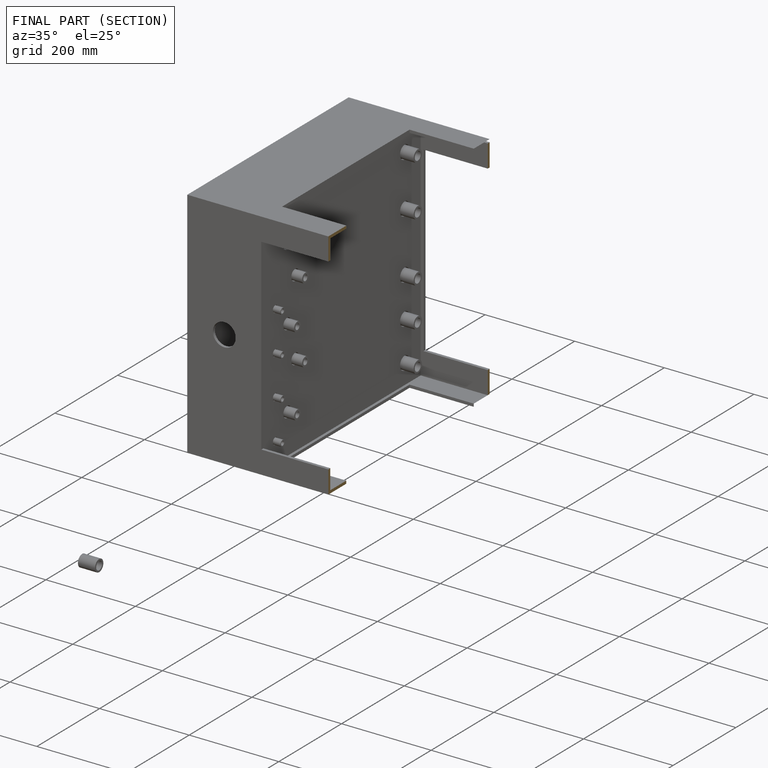
[diagram: finished part — half-section view (interior)]
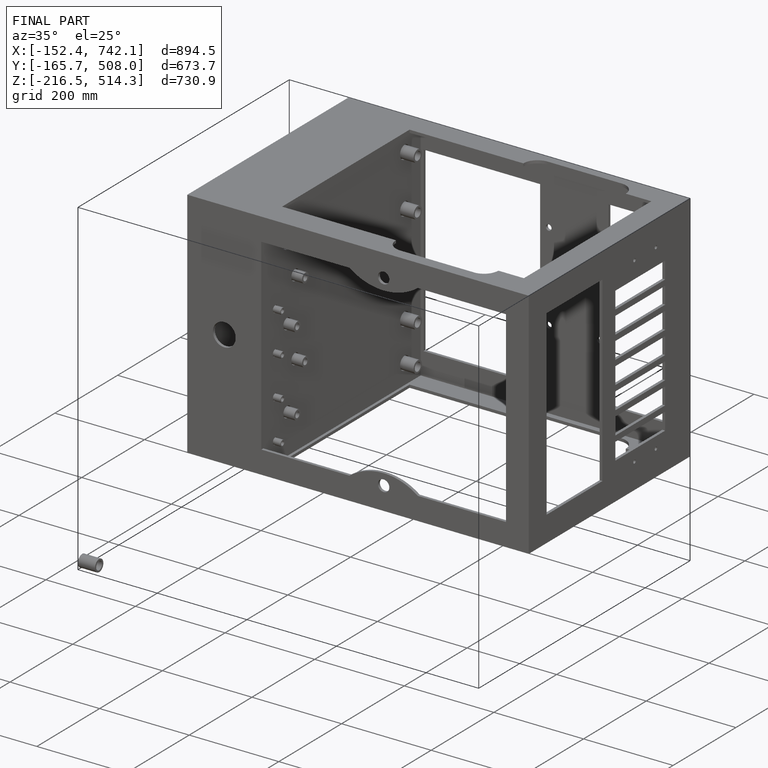
[diagram: finished part — iso view with bounding-box wireframe]
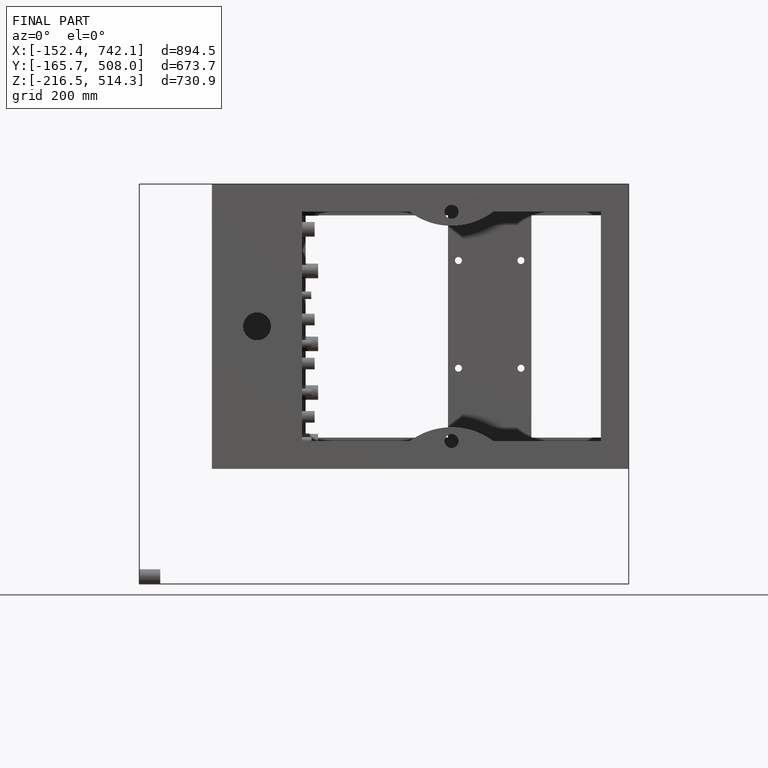
[diagram: finished part — front view with bounding-box wireframe]
